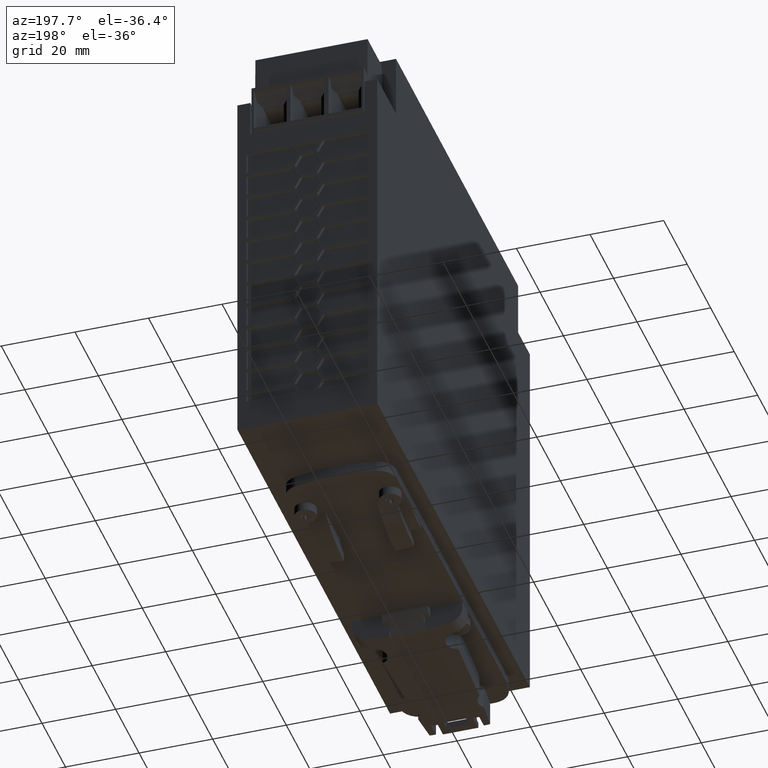
[diagram: clean part render]
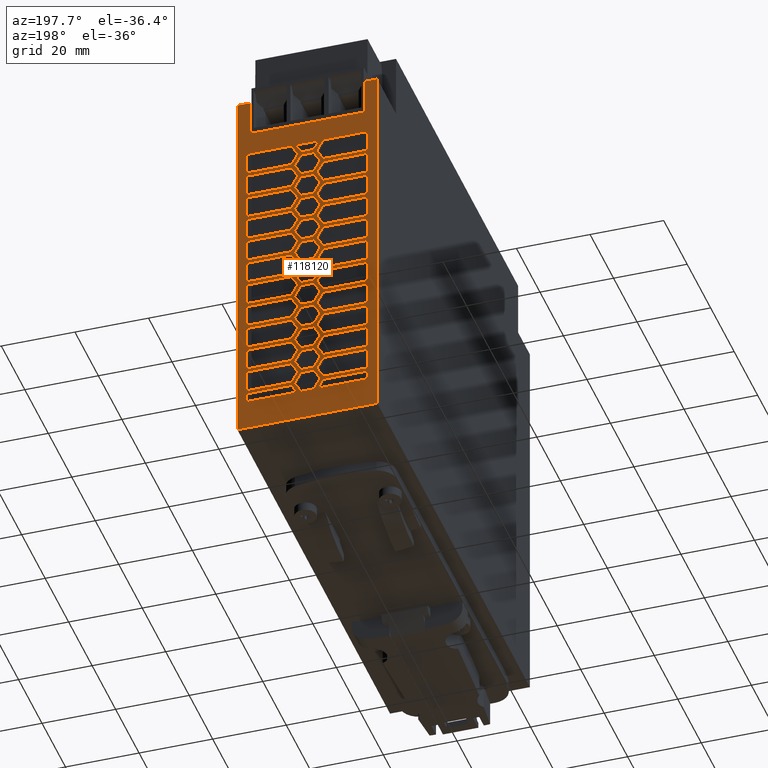
[diagram: same view with one face highlighted and labeled with its STEP entity id]
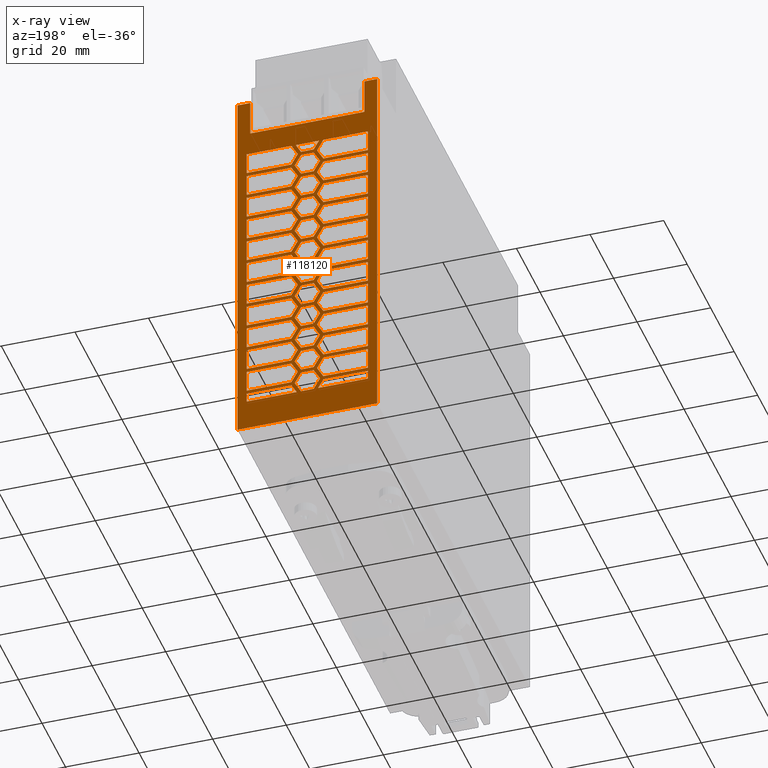
[diagram: x-ray of the same camera — body ghosted, the highlighted face saturated]
A machine part, auxiliary view. The second image highlights one B-rep face of the part: STEP entity #118120.
The next image is the same camera in x-ray: the body ghosted, the highlighted face saturated — about 0% of this face is hidden behind the body in this view.
In plain terms, the highlighted planar face has unit normal (-0, 1, -0).
Its self-contained STEP definition (entity closure, byte-faithful):
#82300=CARTESIAN_POINT('',(17.9983136713304,9.83391146289345E-12,
-0.895453265964761));
#82310=DIRECTION('',(0.999999999905512,2.57338714660564E-20,
-1.37468202355512E-5));
#82320=VECTOR('',#82310,1.);
#82330=LINE('',#82300,#82320);
#82340=CARTESIAN_POINT('',(-1.00168632687437,9.8339109739502E-12,
-0.895192076380284));
#82350=VERTEX_POINT('',#82340);
#82360=CARTESIAN_POINT('',(36.9983136695351,9.833911951837E-12,
-0.895714455549234));
#82370=VERTEX_POINT('',#82360);
#82380=EDGE_CURVE('',#82350,#82370,#82330,.T.);
#84720=CARTESIAN_POINT('',(36.9983136695351,104.300000000009,
-0.895714455549234));
#84730=VERTEX_POINT('',#84720);
#84760=CARTESIAN_POINT('',(36.9983136695351,0.,-0.895714455549234));
#84770=DIRECTION('',(-2.5733871468488E-20,1.,0.));
#84780=VECTOR('',#84770,1.);
#84790=LINE('',#84760,#84780);
#84800=EDGE_CURVE('',#82370,#84730,#84790,.T.);
#101390=CARTESIAN_POINT('',(-1.00168632687437,0.,-0.895192076380284));
#101400=DIRECTION('',(-2.5733871468488E-20,1.,0.));
#101410=VECTOR('',#101400,1.);
#101420=LINE('',#101390,#101410);
#101430=CARTESIAN_POINT('',(-1.00168632687437,104.300000000009,
-0.895192076380283));
#101440=VERTEX_POINT('',#101430);
#101450=EDGE_CURVE('',#82350,#101440,#101420,.T.);
#101880=CARTESIAN_POINT('',(-1.00168632687437,9.83391097394989E-12,
-0.895192076380283));
#101890=DIRECTION('',(-1.37468202355512E-5,-3.53758905042085E-25,
-0.999999999905512));
#101900=DIRECTION('',(0.999999999905512,2.57338714660564E-20,
-1.37468202355512E-5));
#101910=AXIS2_PLACEMENT_3D('',#101880,#101890,#101900);
#101920=PLANE('',#101910);
#101930=ORIENTED_EDGE('',*,*,#84800,.F.);
#101940=CARTESIAN_POINT('',(0.,104.300000000009,-0.895205846382153));
#101950=DIRECTION('',(0.999999999905512,0.,-1.37468202355512E-5));
#101960=VECTOR('',#101950,1.);
#101970=LINE('',#101940,#101960);
#101980=CARTESIAN_POINT('',(33.4983136698658,104.300000000009,
-0.89566634167841));
#101990=VERTEX_POINT('',#101980);
#102000=EDGE_CURVE('',#101990,#84730,#101970,.T.);
#102010=ORIENTED_EDGE('',*,*,#102000,.T.);
#102020=CARTESIAN_POINT('',(33.4983136698658,0.,-0.89566634167841));
#102030=DIRECTION('',(-4.86344526031472E-30,1.,-3.53758905008654E-25));
#102040=VECTOR('',#102030,1.);
#102050=LINE('',#102020,#102040);
#102060=CARTESIAN_POINT('',(33.4983136698658,94.5000000000089,
-0.89566634167841));
#102070=VERTEX_POINT('',#102060);
#102080=EDGE_CURVE('',#102070,#101990,#102050,.T.);
#102090=ORIENTED_EDGE('',*,*,#102080,.T.);
#102100=CARTESIAN_POINT('',(0.,94.5000000000089,-0.895205846382153));
#102110=DIRECTION('',(-0.999999999905512,0.,1.37468202355512E-5));
#102120=VECTOR('',#102110,1.);
#102130=LINE('',#102100,#102120);
#102140=CARTESIAN_POINT('',(2.49831367279492,94.5000000000089,
-0.895240190251108));
#102150=VERTEX_POINT('',#102140);
#102160=EDGE_CURVE('',#102070,#102150,#102130,.T.);
#102170=ORIENTED_EDGE('',*,*,#102160,.F.);
#102180=CARTESIAN_POINT('',(2.49831367279492,0.,-0.895240190251108));
#102190=DIRECTION('',(4.86344526031472E-30,-1.,3.53758905008654E-25));
#102200=VECTOR('',#102190,1.);
#102210=LINE('',#102180,#102200);
#102220=CARTESIAN_POINT('',(2.49831367279492,104.300000000009,
-0.895240190251108));
#102230=VERTEX_POINT('',#102220);
#102240=EDGE_CURVE('',#102230,#102150,#102210,.T.);
#102250=ORIENTED_EDGE('',*,*,#102240,.T.);
#102260=CARTESIAN_POINT('',(0.,104.300000000009,-0.895205846382153));
#102270=DIRECTION('',(0.999999999905512,0.,-1.37468202355512E-5));
#102280=VECTOR('',#102270,1.);
#102290=LINE('',#102260,#102280);
#102300=EDGE_CURVE('',#101440,#102230,#102290,.T.);
#102310=ORIENTED_EDGE('',*,*,#102300,.T.);
#102320=ORIENTED_EDGE('',*,*,#101450,.T.);
#102330=ORIENTED_EDGE('',*,*,#82380,.F.);
#102340=EDGE_LOOP('',(#102330,#102320,#102310,#102250,#102170,#102090,
#102010,#101930));
#102350=FACE_OUTER_BOUND('',#102340,.T.);
#102360=CARTESIAN_POINT('',(0.,68.0000000000089,-0.895205846382153));
#102370=DIRECTION('',(0.999999999905512,0.,-1.37468202355512E-5));
#102380=VECTOR('',#102370,1.);
#102390=LINE('',#102360,#102380);
#102400=CARTESIAN_POINT('',(1.49831367288941,68.0000000000089,
-0.895226443430872));
#102410=VERTEX_POINT('',#102400);
#102420=CARTESIAN_POINT('',(13.6681866528175,68.0000000000089,
-0.895393740487034));
#102430=VERTEX_POINT('',#102420);
#102440=EDGE_CURVE('',#102410,#102430,#102390,.T.);
#102450=ORIENTED_EDGE('',*,*,#102440,.T.);
#102460=CARTESIAN_POINT('',(1.49831367288941,0.,-0.895226443430872));
#102470=DIRECTION('',(4.86344555979027E-30,-1.,3.53758905008654E-25));
#102480=VECTOR('',#102470,1.);
#102490=LINE('',#102460,#102480);
#102500=CARTESIAN_POINT('',(1.49831367288941,74.0000000000089,
-0.895226443430872));
#102510=VERTEX_POINT('',#102500);
#102520=EDGE_CURVE('',#102510,#102410,#102490,.T.);
#102530=ORIENTED_EDGE('',*,*,#102520,.T.);
#102540=CARTESIAN_POINT('',(0.,74.0000000000089,-0.895205846382153));
#102550=DIRECTION('',(-0.999999999905512,0.,1.37468202355512E-5));
#102560=VECTOR('',#102550,1.);
#102570=LINE('',#102540,#102560);
#102580=CARTESIAN_POINT('',(13.6681866528175,74.0000000000089,
-0.895393740487032));
#102590=VERTEX_POINT('',#102580);
#102600=EDGE_CURVE('',#102590,#102510,#102570,.T.);
#102610=ORIENTED_EDGE('',*,*,#102600,.T.);
#102620=CARTESIAN_POINT('',(56.39210656882,0.,-0.895981058533932));
#102630=DIRECTION('',(-0.499999999952773,0.866025403784429,
6.87341011779141E-6));
#102640=VECTOR('',#102630,1.);
#102650=LINE('',#102620,#102640);
#102660=CARTESIAN_POINT('',(15.4002374602228,71.0000000000089,
-0.895417550678124));
#102670=VERTEX_POINT('',#102660);
#102680=EDGE_CURVE('',#102670,#102590,#102650,.T.);
#102690=ORIENTED_EDGE('',*,*,#102680,.T.);
#102700=CARTESIAN_POINT('',(-25.5916316483744,0.,-0.894854042822315));
#102710=DIRECTION('',(0.499999999952773,0.866025403784429,
-6.87341011779141E-6));
#102720=VECTOR('',#102710,1.);
#102730=LINE('',#102700,#102720);
#102740=EDGE_CURVE('',#102430,#102670,#102730,.T.);
#102750=ORIENTED_EDGE('',*,*,#102740,.T.);
#102760=EDGE_LOOP('',(#102750,#102690,#102610,#102530,#102450));
#102770=FACE_BOUND('',#102760,.T.);
#102780=CARTESIAN_POINT('',(0.,22.5000000000089,-0.895205846382153));
#102790=DIRECTION('',(0.999999999905512,0.,-1.37468202355512E-5));
#102800=VECTOR('',#102790,1.);
#102810=LINE('',#102780,#102800);
#102820=CARTESIAN_POINT('',(16.266262863925,22.5000000000089,
-0.895429455773668));
#102830=VERTEX_POINT('',#102820);
#102840=CARTESIAN_POINT('',(19.7303644787357,22.5000000000089,
-0.89547707615585));
#102850=VERTEX_POINT('',#102840);
#102860=EDGE_CURVE('',#102830,#102850,#102810,.T.);
#102870=ORIENTED_EDGE('',*,*,#102860,.T.);
#102880=CARTESIAN_POINT('',(29.2566439194698,0.,-0.895608032206847));
#102890=DIRECTION('',(0.499999999952773,-0.866025403784429,
-6.87341011779141E-6));
#102900=VECTOR('',#102890,1.);
#102910=LINE('',#102880,#102900);
#102920=CARTESIAN_POINT('',(14.5342120565197,25.5000000000089,
-0.895405645582577));
#102930=VERTEX_POINT('',#102920);
#102940=EDGE_CURVE('',#102930,#102830,#102910,.T.);
#102950=ORIENTED_EDGE('',*,*,#102940,.T.);
#102960=CARTESIAN_POINT('',(-0.188219806430403,0.,-0.895203258958309));
#102970=DIRECTION('',(-0.499999999952773,-0.866025403784429,
6.87341011779141E-6));
#102980=VECTOR('',#102970,1.);
#102990=LINE('',#102960,#102980);
#103000=CARTESIAN_POINT('',(16.266262863925,28.5000000000088,
-0.895429455773669));
#103010=VERTEX_POINT('',#103000);
#103020=EDGE_CURVE('',#103010,#102930,#102990,.T.);
#103030=ORIENTED_EDGE('',*,*,#103020,.T.);
#103040=CARTESIAN_POINT('',(0.,28.5000000000088,-0.895205846382153));
#103050=DIRECTION('',(-0.999999999905512,0.,1.37468202355512E-5));
#103060=VECTOR('',#103050,1.);
#103070=LINE('',#103040,#103060);
#103080=CARTESIAN_POINT('',(19.7303644787357,28.5000000000088,
-0.895477076155849));
#103090=VERTEX_POINT('',#103080);
#103100=EDGE_CURVE('',#103090,#103010,#103070,.T.);
#103110=ORIENTED_EDGE('',*,*,#103100,.T.);
#103120=CARTESIAN_POINT('',(36.1848471490912,0.,-0.895703272971209));
#103130=DIRECTION('',(-0.499999999952773,0.866025403784429,
6.87341011779141E-6));
#103140=VECTOR('',#103130,1.);
#103150=LINE('',#103120,#103140);
#103160=CARTESIAN_POINT('',(21.462415286141,25.5000000000088,
-0.89550088634694));
#103170=VERTEX_POINT('',#103160);
#103180=EDGE_CURVE('',#103170,#103090,#103150,.T.);
#103190=ORIENTED_EDGE('',*,*,#103180,.T.);
#103200=CARTESIAN_POINT('',(6.73998342319089,0.,-0.895298499722671));
#103210=DIRECTION('',(0.499999999952773,0.866025403784429,
-6.87341011779141E-6));
#103220=VECTOR('',#103210,1.);
#103230=LINE('',#103200,#103220);
#103240=EDGE_CURVE('',#102850,#103170,#103230,.T.);
#103250=ORIENTED_EDGE('',*,*,#103240,.T.);
#103260=EDGE_LOOP('',(#103250,#103190,#103110,#103030,#102950,#102870));
#103270=FACE_BOUND('',#103260,.T.);
#103280=CARTESIAN_POINT('',(7.89468396146062,0.,-0.895314373183398));
#103290=DIRECTION('',(-0.499999999952773,-0.866025403784429,
6.87341011779141E-6));
#103300=VECTOR('',#103290,1.);
#103310=LINE('',#103280,#103300);
#103320=CARTESIAN_POINT('',(22.3284406898432,25.0000000000089,
-0.895512791442486));
#103330=VERTEX_POINT('',#103320);
#103340=CARTESIAN_POINT('',(20.5963898824379,22.0000000000089,
-0.895488981251394));
#103350=VERTEX_POINT('',#103340);
#103360=EDGE_CURVE('',#103330,#103350,#103310,.T.);
#103370=ORIENTED_EDGE('',*,*,#103360,.T.);
#103380=CARTESIAN_POINT('',(0.,25.0000000000089,-0.895205846382153));
#103390=DIRECTION('',(-0.999999999905512,0.,1.37468202355512E-5));
#103400=VECTOR('',#103390,1.);
#103410=LINE('',#103380,#103400);
#103420=CARTESIAN_POINT('',(34.4983136697714,25.0000000000089,
-0.895680088498645));
#103430=VERTEX_POINT('',#103420);
#103440=EDGE_CURVE('',#103430,#103330,#103410,.T.);
#103450=ORIENTED_EDGE('',*,*,#103440,.T.);
#103460=CARTESIAN_POINT('',(34.4983136697714,0.,-0.895680088498646));
#103470=DIRECTION('',(-4.86344555979027E-30,1.,-3.53758905008654E-25));
#103480=VECTOR('',#103470,1.);
#103490=LINE('',#103460,#103480);
#103500=CARTESIAN_POINT('',(34.4983136697714,19.0000000000088,
-0.895680088498645));
#103510=VERTEX_POINT('',#103500);
#103520=EDGE_CURVE('',#103510,#103430,#103490,.T.);
#103530=ORIENTED_EDGE('',*,*,#103520,.T.);
#103540=CARTESIAN_POINT('',(0.,19.0000000000088,-0.895205846382153));
#103550=DIRECTION('',(0.999999999905512,0.,-1.37468202355512E-5));
#103560=VECTOR('',#103550,1.);
#103570=LINE('',#103540,#103560);
#103580=CARTESIAN_POINT('',(22.3284406898432,19.0000000000088,
-0.895512791442485));
#103590=VERTEX_POINT('',#103580);
#103600=EDGE_CURVE('',#103590,#103510,#103570,.T.);
#103610=ORIENTED_EDGE('',*,*,#103600,.T.);
#103620=CARTESIAN_POINT('',(33.2980958034152,0.,-0.895663589319392));
#103630=DIRECTION('',(0.499999999952773,-0.866025403784429,
-6.87341011779141E-6));
#103640=VECTOR('',#103630,1.);
#103650=LINE('',#103620,#103640);
#103660=EDGE_CURVE('',#103350,#103590,#103650,.T.);
#103670=ORIENTED_EDGE('',*,*,#103660,.T.);
#103680=EDGE_LOOP('',(#103670,#103610,#103530,#103450,#103370));
#103690=FACE_BOUND('',#103680,.T.);
#103700=CARTESIAN_POINT('',(29.2566439194695,0.,-0.895608032206847));
#103710=DIRECTION('',(0.499999999952773,-0.866025403784429,
-6.87341011779141E-6));
#103720=VECTOR('',#103710,1.);
#103730=LINE('',#103700,#103720);
#103740=CARTESIAN_POINT('',(20.5963898824379,15.0000000000089,
-0.895488981251394));
#103750=VERTEX_POINT('',#103740);
#103760=CARTESIAN_POINT('',(22.3284406898432,12.0000000000089,
-0.895512791442485));
#103770=VERTEX_POINT('',#103760);
#103780=EDGE_CURVE('',#103750,#103770,#103730,.T.);
#103790=ORIENTED_EDGE('',*,*,#103780,.T.);
#103800=CARTESIAN_POINT('',(11.9361358454063,0.,-0.895369930295942));
#103810=DIRECTION('',(-0.499999999952773,-0.866025403784429,
6.87341011779141E-6));
#103820=VECTOR('',#103810,1.);
#103830=LINE('',#103800,#103820);
#103840=CARTESIAN_POINT('',(22.3284406898432,18.0000000000089,
-0.895512791442485));
#103850=VERTEX_POINT('',#103840);
#103860=EDGE_CURVE('',#103850,#103750,#103830,.T.);
#103870=ORIENTED_EDGE('',*,*,#103860,.T.);
#103880=CARTESIAN_POINT('',(0.,18.0000000000089,-0.895205846382153));
#103890=DIRECTION('',(-0.999999999905512,0.,1.37468202355512E-5));
#103900=VECTOR('',#103890,1.);
#103910=LINE('',#103880,#103900);
#103920=CARTESIAN_POINT('',(34.4983136697714,18.0000000000089,
-0.895680088498645));
#103930=VERTEX_POINT('',#103920);
#103940=EDGE_CURVE('',#103930,#103850,#103910,.T.);
#103950=ORIENTED_EDGE('',*,*,#103940,.T.);
#103960=CARTESIAN_POINT('',(34.4983136697714,0.,-0.895680088498646));
#103970=DIRECTION('',(-4.86344555979027E-30,1.,-3.53758905008654E-25));
#103980=VECTOR('',#103970,1.);
#103990=LINE('',#103960,#103980);
#104000=CARTESIAN_POINT('',(34.4983136697714,12.0000000000089,
-0.895680088498645));
#104010=VERTEX_POINT('',#104000);
#104020=EDGE_CURVE('',#104010,#103930,#103990,.T.);
#104030=ORIENTED_EDGE('',*,*,#104020,.T.);
#104040=CARTESIAN_POINT('',(0.,12.0000000000089,-0.895205846382153));
#104050=DIRECTION('',(0.999999999905512,0.,-1.37468202355512E-5));
#104060=VECTOR('',#104050,1.);
#104070=LINE('',#104040,#104060);
#104080=EDGE_CURVE('',#103770,#104010,#104070,.T.);
#104090=ORIENTED_EDGE('',*,*,#104080,.T.);
#104100=EDGE_LOOP('',(#104090,#104030,#103950,#103870,#103790));
#104110=FACE_BOUND('',#104100,.T.);
#104120=CARTESIAN_POINT('',(0.,36.5000000000088,-0.895205846382153));
#104130=DIRECTION('',(0.999999999905512,0.,-1.37468202355512E-5));
#104140=VECTOR('',#104130,1.);
#104150=LINE('',#104120,#104140);
#104160=CARTESIAN_POINT('',(16.266262863925,36.5000000000088,
-0.895429455773668));
#104170=VERTEX_POINT('',#104160);
#104180=CARTESIAN_POINT('',(19.7303644787357,36.5000000000088,
-0.89547707615585));
#104190=VERTEX_POINT('',#104180);
#104200=EDGE_CURVE('',#104170,#104190,#104150,.T.);
#104210=ORIENTED_EDGE('',*,*,#104200,.T.);
#104220=CARTESIAN_POINT('',(37.3395476873613,0.,-0.895719146431936));
#104230=DIRECTION('',(0.499999999952773,-0.866025403784429,
-6.87341011779141E-6));
#104240=VECTOR('',#104230,1.);
#104250=LINE('',#104220,#104240);
#104260=CARTESIAN_POINT('',(14.5342120565197,39.5000000000089,
-0.895405645582577));
#104270=VERTEX_POINT('',#104260);
#104280=EDGE_CURVE('',#104270,#104170,#104250,.T.);
#104290=ORIENTED_EDGE('',*,*,#104280,.T.);
#104300=CARTESIAN_POINT('',(-8.27112357432182,0.,-0.89509214473322));
#104310=DIRECTION('',(-0.499999999952773,-0.866025403784429,
6.87341011779141E-6));
#104320=VECTOR('',#104310,1.);
#104330=LINE('',#104300,#104320);
#104340=CARTESIAN_POINT('',(16.266262863925,42.5000000000089,
-0.895429455773669));
#104350=VERTEX_POINT('',#104340);
#104360=EDGE_CURVE('',#104350,#104270,#104330,.T.);
#104370=ORIENTED_EDGE('',*,*,#104360,.T.);
#104380=CARTESIAN_POINT('',(0.,42.5000000000088,-0.895205846382153));
#104390=DIRECTION('',(-0.999999999905512,0.,1.37468202355512E-5));
#104400=VECTOR('',#104390,1.);
#104410=LINE('',#104380,#104400);
#104420=CARTESIAN_POINT('',(19.7303644787357,42.5000000000088,
-0.895477076155849));
#104430=VERTEX_POINT('',#104420);
#104440=EDGE_CURVE('',#104430,#104350,#104410,.T.);
#104450=ORIENTED_EDGE('',*,*,#104440,.T.);
#104460=CARTESIAN_POINT('',(44.2677509169826,0.,-0.895814387196298));
#104470=DIRECTION('',(-0.499999999952773,0.866025403784429,
6.87341011779141E-6));
#104480=VECTOR('',#104470,1.);
#104490=LINE('',#104460,#104480);
#104500=CARTESIAN_POINT('',(21.462415286141,39.5000000000088,
-0.89550088634694));
#104510=VERTEX_POINT('',#104500);
#104520=EDGE_CURVE('',#104510,#104430,#104490,.T.);
#104530=ORIENTED_EDGE('',*,*,#104520,.T.);
#104540=CARTESIAN_POINT('',(-1.34292034470049,0.,-0.895187385497582));
#104550=DIRECTION('',(0.499999999952773,0.866025403784429,
-6.87341011779141E-6));
#104560=VECTOR('',#104550,1.);
#104570=LINE('',#104540,#104560);
#104580=EDGE_CURVE('',#104190,#104510,#104570,.T.);
#104590=ORIENTED_EDGE('',*,*,#104580,.T.);
#104600=EDGE_LOOP('',(#104590,#104530,#104450,#104370,#104290,#104210));
#104610=FACE_BOUND('',#104600,.T.);
#104620=CARTESIAN_POINT('',(1.49831367288941,0.,-0.895226443430872));
#104630=DIRECTION('',(4.86344555979027E-30,-1.,3.53758905008654E-25));
#104640=VECTOR('',#104630,1.);
#104650=LINE('',#104620,#104640);
#104660=CARTESIAN_POINT('',(1.49831367288941,25.0000000000089,
-0.895226443430872));
#104670=VERTEX_POINT('',#104660);
#104680=CARTESIAN_POINT('',(1.49831367288941,19.0000000000088,
-0.895226443430872));
#104690=VERTEX_POINT('',#104680);
#104700=EDGE_CURVE('',#104670,#104690,#104650,.T.);
#104710=ORIENTED_EDGE('',*,*,#104700,.T.);
#104720=CARTESIAN_POINT('',(0.,25.0000000000088,-0.895205846382153));
#104730=DIRECTION('',(-0.999999999905512,0.,1.37468202355512E-5));
#104740=VECTOR('',#104730,1.);
#104750=LINE('',#104720,#104740);
#104760=CARTESIAN_POINT('',(13.6681866528175,25.0000000000088,
-0.895393740487032));
#104770=VERTEX_POINT('',#104760);
#104780=EDGE_CURVE('',#104770,#104670,#104750,.T.);
#104790=ORIENTED_EDGE('',*,*,#104780,.T.);
#104800=CARTESIAN_POINT('',(28.1019433812001,0.,-0.89559215874612));
#104810=DIRECTION('',(-0.499999999952773,0.866025403784429,
6.87341011779141E-6));
#104820=VECTOR('',#104810,1.);
#104830=LINE('',#104800,#104820);
#104840=CARTESIAN_POINT('',(15.4002374602228,22.0000000000088,
-0.895417550678124));
#104850=VERTEX_POINT('',#104840);
#104860=EDGE_CURVE('',#104850,#104770,#104830,.T.);
#104870=ORIENTED_EDGE('',*,*,#104860,.T.);
#104880=CARTESIAN_POINT('',(2.69853153924555,0.,-0.895242942610126));
#104890=DIRECTION('',(0.499999999952773,0.866025403784429,
-6.87341011779141E-6));
#104900=VECTOR('',#104890,1.);
#104910=LINE('',#104880,#104900);
#104920=CARTESIAN_POINT('',(13.6681866528175,19.0000000000088,
-0.895393740487033));
#104930=VERTEX_POINT('',#104920);
#104940=EDGE_CURVE('',#104930,#104850,#104910,.T.);
#104950=ORIENTED_EDGE('',*,*,#104940,.T.);
#104960=CARTESIAN_POINT('',(0.,19.0000000000088,-0.895205846382153));
#104970=DIRECTION('',(0.999999999905512,0.,-1.37468202355512E-5));
#104980=VECTOR('',#104970,1.);
#104990=LINE('',#104960,#104980);
#105000=EDGE_CURVE('',#104690,#104930,#104990,.T.);
#105010=ORIENTED_EDGE('',*,*,#105000,.T.);
#105020=EDGE_LOOP('',(#105010,#104950,#104870,#104790,#104710));
#105030=FACE_BOUND('',#105020,.T.);
#105040=CARTESIAN_POINT('',(7.89468396146097,0.,-0.895314373183398));
#105050=DIRECTION('',(-0.499999999952773,-0.866025403784429,
6.87341011779141E-6));
#105060=VECTOR('',#105050,1.);
#105070=LINE('',#105040,#105060);
#105080=CARTESIAN_POINT('',(16.266262863925,14.5000000000088,
-0.895429455773669));
#105090=VERTEX_POINT('',#105080);
#105100=CARTESIAN_POINT('',(14.5342120565197,11.5000000000089,
-0.895405645582578));
#105110=VERTEX_POINT('',#105100);
#105120=EDGE_CURVE('',#105090,#105110,#105070,.T.);
#105130=ORIENTED_EDGE('',*,*,#105120,.T.);
#105140=CARTESIAN_POINT('',(0.,14.5000000000088,-0.895205846382153));
#105150=DIRECTION('',(-0.999999999905512,0.,1.37468202355512E-5));
#105160=VECTOR('',#105150,1.);
#105170=LINE('',#105140,#105160);
#105180=CARTESIAN_POINT('',(19.7303644787357,14.5000000000088,
-0.895477076155849));
#105190=VERTEX_POINT('',#105180);
#105200=EDGE_CURVE('',#105190,#105090,#105170,.T.);
#105210=ORIENTED_EDGE('',*,*,#105200,.T.);
#105220=CARTESIAN_POINT('',(28.1019433811998,0.,-0.89559215874612));
#105230=DIRECTION('',(-0.499999999952773,0.866025403784429,
6.87341011779141E-6));
#105240=VECTOR('',#105230,1.);
#105250=LINE('',#105220,#105240);
#105260=CARTESIAN_POINT('',(21.462415286141,11.5000000000088,
-0.89550088634694));
#105270=VERTEX_POINT('',#105260);
#105280=EDGE_CURVE('',#105270,#105190,#105250,.T.);
#105290=ORIENTED_EDGE('',*,*,#105280,.T.);
#105300=CARTESIAN_POINT('',(14.8228871910823,0.,-0.89540961394776));
#105310=DIRECTION('',(0.499999999952773,0.866025403784429,
-6.87341011779141E-6));
#105320=VECTOR('',#105310,1.);
#105330=LINE('',#105300,#105320);
#105340=CARTESIAN_POINT('',(19.7303644787357,8.50000000000883,
-0.895477076155849));
#105350=VERTEX_POINT('',#105340);
#105360=EDGE_CURVE('',#105350,#105270,#105330,.T.);
#105370=ORIENTED_EDGE('',*,*,#105360,.T.);
#105380=CARTESIAN_POINT('',(0.,8.50000000000885,-0.895205846382153));
#105390=DIRECTION('',(0.999999999905512,0.,-1.37468202355512E-5));
#105400=VECTOR('',#105390,1.);
#105410=LINE('',#105380,#105400);
#105420=CARTESIAN_POINT('',(16.266262863925,8.50000000000885,
-0.895429455773668));
#105430=VERTEX_POINT('',#105420);
#105440=EDGE_CURVE('',#105430,#105350,#105410,.T.);
#105450=ORIENTED_EDGE('',*,*,#105440,.T.);
#105460=CARTESIAN_POINT('',(21.1737401515785,0.,-0.895496917981758));
#105470=DIRECTION('',(0.499999999952773,-0.866025403784429,
-6.87341011779141E-6));
#105480=VECTOR('',#105470,1.);
#105490=LINE('',#105460,#105480);
#105500=EDGE_CURVE('',#105110,#105430,#105490,.T.);
#105510=ORIENTED_EDGE('',*,*,#105500,.T.);
#105520=EDGE_LOOP('',(#105510,#105450,#105370,#105290,#105210,#105130));
#105530=FACE_BOUND('',#105520,.T.);
#105540=CARTESIAN_POINT('',(57.5468071070894,0.,-0.895996931994658));
#105550=DIRECTION('',(0.499999999952773,-0.866025403784429,
-6.87341011779141E-6));
#105560=VECTOR('',#105550,1.);
#105570=LINE('',#105540,#105560);
#105580=CARTESIAN_POINT('',(20.5963898824379,64.0000000000089,
-0.895488981251393));
#105590=VERTEX_POINT('',#105580);
#105600=CARTESIAN_POINT('',(22.3284406898432,61.0000000000089,
-0.895512791442485));
#105610=VERTEX_POINT('',#105600);
#105620=EDGE_CURVE('',#105590,#105610,#105570,.T.);
#105630=ORIENTED_EDGE('',*,*,#105620,.T.);
#105640=CARTESIAN_POINT('',(-16.3540273422136,0.,-0.894981030508131));
#105650=DIRECTION('',(-0.499999999952773,-0.866025403784429,
6.87341011779141E-6));
#105660=VECTOR('',#105650,1.);
#105670=LINE('',#105640,#105660);
#105680=CARTESIAN_POINT('',(22.3284406898432,67.0000000000089,
-0.895512791442486));
#105690=VERTEX_POINT('',#105680);
#105700=EDGE_CURVE('',#105690,#105590,#105670,.T.);
#105710=ORIENTED_EDGE('',*,*,#105700,.T.);
#105720=CARTESIAN_POINT('',(0.,67.0000000000089,-0.895205846382153));
#105730=DIRECTION('',(-0.999999999905512,0.,1.37468202355512E-5));
#105740=VECTOR('',#105730,1.);
#105750=LINE('',#105720,#105740);
#105760=CARTESIAN_POINT('',(34.4983136697714,67.0000000000089,
-0.895680088498645));
#105770=VERTEX_POINT('',#105760);
#105780=EDGE_CURVE('',#105770,#105690,#105750,.T.);
#105790=ORIENTED_EDGE('',*,*,#105780,.T.);
#105800=CARTESIAN_POINT('',(34.4983136697714,0.,-0.895680088498646));
#105810=DIRECTION('',(-4.86344555979027E-30,1.,-3.53758905008654E-25));
#105820=VECTOR('',#105810,1.);
#105830=LINE('',#105800,#105820);
#105840=CARTESIAN_POINT('',(34.4983136697714,61.0000000000089,
-0.895680088498645));
#105850=VERTEX_POINT('',#105840);
#105860=EDGE_CURVE('',#105850,#105770,#105830,.T.);
#105870=ORIENTED_EDGE('',*,*,#105860,.T.);
#105880=CARTESIAN_POINT('',(0.,61.0000000000089,-0.895205846382153));
#105890=DIRECTION('',(0.999999999905512,0.,-1.37468202355512E-5));
#105900=VECTOR('',#105890,1.);
#105910=LINE('',#105880,#105900);
#105920=EDGE_CURVE('',#105610,#105850,#105910,.T.);
#105930=ORIENTED_EDGE('',*,*,#105920,.T.);
#105940=EDGE_LOOP('',(#105930,#105870,#105790,#105710,#105630));
#105950=FACE_BOUND('',#105940,.T.);
#105960=CARTESIAN_POINT('',(36.1848471490915,0.,-0.895703272971209));
#105970=DIRECTION('',(-0.499999999952773,0.866025403784429,
6.87341011779141E-6));
#105980=VECTOR('',#105970,1.);
#105990=LINE('',#105960,#105980);
#106000=CARTESIAN_POINT('',(15.4002374602228,36.0000000000088,
-0.895417550678124));
#106010=VERTEX_POINT('',#106000);
#106020=CARTESIAN_POINT('',(13.6681866528175,39.0000000000089,
-0.895393740487032));
#106030=VERTEX_POINT('',#106020);
#106040=EDGE_CURVE('',#106010,#106030,#105990,.T.);
#106050=ORIENTED_EDGE('',*,*,#106040,.T.);
#106060=CARTESIAN_POINT('',(-5.38437222864589,0.,-0.895131828385037));
#106070=DIRECTION('',(0.499999999952773,0.866025403784429,
-6.87341011779141E-6));
#106080=VECTOR('',#106070,1.);
#106090=LINE('',#106060,#106080);
#106100=CARTESIAN_POINT('',(13.6681866528175,33.0000000000089,
-0.895393740487033));
#106110=VERTEX_POINT('',#106100);
#106120=EDGE_CURVE('',#106110,#106010,#106090,.T.);
#106130=ORIENTED_EDGE('',*,*,#106120,.T.);
#106140=CARTESIAN_POINT('',(0.,33.0000000000089,-0.895205846382153));
#106150=DIRECTION('',(0.999999999905512,0.,-1.37468202355512E-5));
#106160=VECTOR('',#106150,1.);
#106170=LINE('',#106140,#106160);
#106180=CARTESIAN_POINT('',(1.49831367288941,33.0000000000089,
-0.895226443430872));
#106190=VERTEX_POINT('',#106180);
#106200=EDGE_CURVE('',#106190,#106110,#106170,.T.);
#106210=ORIENTED_EDGE('',*,*,#106200,.T.);
#106220=CARTESIAN_POINT('',(1.49831367288941,0.,-0.895226443430872));
#106230=DIRECTION('',(4.86344555979027E-30,-1.,3.53758905008654E-25));
#106240=VECTOR('',#106230,1.);
#106250=LINE('',#106220,#106240);
#106260=CARTESIAN_POINT('',(1.49831367288941,39.0000000000089,
-0.895226443430872));
#106270=VERTEX_POINT('',#106260);
#106280=EDGE_CURVE('',#106270,#106190,#106250,.T.);
#106290=ORIENTED_EDGE('',*,*,#106280,.T.);
#106300=CARTESIAN_POINT('',(0.,39.0000000000089,-0.895205846382153));
#106310=DIRECTION('',(-0.999999999905512,0.,1.37468202355512E-5));
#106320=VECTOR('',#106310,1.);
#106330=LINE('',#106300,#106320);
#106340=EDGE_CURVE('',#106030,#106270,#106330,.T.);
#106350=ORIENTED_EDGE('',*,*,#106340,.T.);
#106360=EDGE_LOOP('',(#106350,#106290,#106210,#106130,#106050));
#106370=FACE_BOUND('',#106360,.T.);
#106380=CARTESIAN_POINT('',(0.,75.0000000000089,-0.895205846382153));
#106390=DIRECTION('',(0.999999999905512,0.,-1.37468202355512E-5));
#106400=VECTOR('',#106390,1.);
#106410=LINE('',#106380,#106400);
#106420=CARTESIAN_POINT('',(1.49831367288941,75.0000000000089,
-0.895226443430872));
#106430=VERTEX_POINT('',#106420);
#106440=CARTESIAN_POINT('',(13.6681866528175,75.0000000000089,
-0.895393740487034));
#106450=VERTEX_POINT('',#106440);
#106460=EDGE_CURVE('',#106430,#106450,#106410,.T.);
#106470=ORIENTED_EDGE('',*,*,#106460,.T.);
#106480=CARTESIAN_POINT('',(1.49831367288941,0.,-0.895226443430872));
#106490=DIRECTION('',(4.86344555979027E-30,-1.,3.53758905008654E-25));
#106500=VECTOR('',#106490,1.);
#106510=LINE('',#106480,#106500);
#106520=CARTESIAN_POINT('',(1.49831367288941,81.0000000000089,
-0.895226443430872));
#106530=VERTEX_POINT('',#106520);
#106540=EDGE_CURVE('',#106530,#106430,#106510,.T.);
#106550=ORIENTED_EDGE('',*,*,#106540,.T.);
#106560=CARTESIAN_POINT('',(0.,81.0000000000089,-0.895205846382153));
#106570=DIRECTION('',(-0.999999999905512,0.,1.37468202355512E-5));
#106580=VECTOR('',#106570,1.);
#106590=LINE('',#106560,#106580);
#106600=CARTESIAN_POINT('',(13.6681866528175,81.0000000000089,
-0.895393740487032));
#106610=VERTEX_POINT('',#106600);
#106620=EDGE_CURVE('',#106610,#106530,#106590,.T.);
#106630=ORIENTED_EDGE('',*,*,#106620,.T.);
#106640=CARTESIAN_POINT('',(60.4335584527657,0.,-0.896036615646476));
#106650=DIRECTION('',(-0.499999999952773,0.866025403784429,
6.87341011779141E-6));
#106660=VECTOR('',#106650,1.);
#106670=LINE('',#106640,#106660);
#106680=CARTESIAN_POINT('',(15.4002374602228,78.0000000000089,
-0.895417550678125));
#106690=VERTEX_POINT('',#106680);
#106700=EDGE_CURVE('',#106690,#106610,#106670,.T.);
#106710=ORIENTED_EDGE('',*,*,#106700,.T.);
#106720=CARTESIAN_POINT('',(-29.63308353232,0.,-0.89479848570977));
#106730=DIRECTION('',(0.499999999952773,0.866025403784429,
-6.87341011779141E-6));
#106740=VECTOR('',#106730,1.);
#106750=LINE('',#106720,#106740);
#106760=EDGE_CURVE('',#106450,#106690,#106750,.T.);
#106770=ORIENTED_EDGE('',*,*,#106760,.T.);
#106780=EDGE_LOOP('',(#106770,#106710,#106630,#106550,#106470));
#106790=FACE_BOUND('',#106780,.T.);
#106800=CARTESIAN_POINT('',(0.,11.0000000000088,-0.895205846382153));
#106810=DIRECTION('',(-0.999999999905512,0.,1.37468202355512E-5));
#106820=VECTOR('',#106810,1.);
#106830=LINE('',#106800,#106820);
#106840=CARTESIAN_POINT('',(13.6681866528174,11.0000000000088,
-0.895393740487032));
#106850=VERTEX_POINT('',#106840);
#106860=CARTESIAN_POINT('',(1.49831367288941,11.0000000000089,
-0.895226443430872));
#106870=VERTEX_POINT('',#106860);
#106880=EDGE_CURVE('',#106850,#106870,#106830,.T.);
#106890=ORIENTED_EDGE('',*,*,#106880,.T.);
#106900=CARTESIAN_POINT('',(20.0190396133086,0.,-0.895481044521031));
#106910=DIRECTION('',(-0.499999999952773,0.866025403784429,
6.87341011779141E-6));
#106920=VECTOR('',#106910,1.);
#106930=LINE('',#106900,#106920);
#106940=CARTESIAN_POINT('',(15.1115623256551,8.50000000000884,
-0.895413582312941));
#106950=VERTEX_POINT('',#106940);
#106960=EDGE_CURVE('',#106950,#106850,#106930,.T.);
#106970=ORIENTED_EDGE('',*,*,#106960,.T.);
#106980=CARTESIAN_POINT('',(0.,8.50000000000884,-0.895205846382153));
#106990=DIRECTION('',(0.999999999905512,0.,-1.37468202355512E-5));
#107000=VECTOR('',#106990,1.);
#107010=LINE('',#106980,#107000);
#107020=CARTESIAN_POINT('',(1.49831367288941,8.50000000000884,
-0.895226443430872));
#107030=VERTEX_POINT('',#107020);
#107040=EDGE_CURVE('',#107030,#106950,#107010,.T.);
#107050=ORIENTED_EDGE('',*,*,#107040,.T.);
#107060=CARTESIAN_POINT('',(1.49831367288941,0.,-0.895226443430872));
#107070=DIRECTION('',(4.86344555979027E-30,-1.,3.53758905008654E-25));
#107080=VECTOR('',#107070,1.);
#107090=LINE('',#107060,#107080);
#107100=EDGE_CURVE('',#106870,#107030,#107090,.T.);
#107110=ORIENTED_EDGE('',*,*,#107100,.T.);
#107120=EDGE_LOOP('',(#107110,#107050,#106970,#106890));
#107130=FACE_BOUND('',#107120,.T.);
#107140=CARTESIAN_POINT('',(0.,88.0000000000089,-0.895205846382153));
#107150=DIRECTION('',(-0.999999999905512,0.,1.37468202355512E-5));
#107160=VECTOR('',#107150,1.);
#107170=LINE('',#107140,#107160);
#107180=CARTESIAN_POINT('',(34.4983136697714,88.0000000000089,
-0.895680088498646));
#107190=VERTEX_POINT('',#107180);
#107200=CARTESIAN_POINT('',(22.3284406898432,88.0000000000089,
-0.895512791442487));
#107210=VERTEX_POINT('',#107200);
#107220=EDGE_CURVE('',#107190,#107210,#107170,.T.);
#107230=ORIENTED_EDGE('',*,*,#107220,.T.);
#107240=CARTESIAN_POINT('',(34.4983136697714,0.,-0.895680088498646));
#107250=DIRECTION('',(-4.86344555979027E-30,1.,-3.53758905008654E-25));
#107260=VECTOR('',#107250,1.);
#107270=LINE('',#107240,#107260);
#107280=CARTESIAN_POINT('',(34.4983136697714,82.0000000000089,
-0.895680088498646));
#107290=VERTEX_POINT('',#107280);
#107300=EDGE_CURVE('',#107290,#107190,#107270,.T.);
#107310=ORIENTED_EDGE('',*,*,#107300,.T.);
#107320=CARTESIAN_POINT('',(0.,82.0000000000089,-0.895205846382153));
#107330=DIRECTION('',(0.999999999905512,0.,-1.37468202355512E-5));
#107340=VECTOR('',#107330,1.);
#107350=LINE('',#107320,#107340);
#107360=CARTESIAN_POINT('',(22.3284406898432,82.0000000000089,
-0.895512791442485));
#107370=VERTEX_POINT('',#107360);
#107380=EDGE_CURVE('',#107370,#107290,#107350,.T.);
#107390=ORIENTED_EDGE('',*,*,#107380,.T.);
#107400=CARTESIAN_POINT('',(69.6711627589265,0.,-0.896163603332292));
#107410=DIRECTION('',(0.499999999952773,-0.866025403784429,
-6.87341011779141E-6));
#107420=VECTOR('',#107410,1.);
#107430=LINE('',#107400,#107420);
#107440=CARTESIAN_POINT('',(20.5963898824379,85.0000000000089,
-0.895488981251393));
#107450=VERTEX_POINT('',#107440);
#107460=EDGE_CURVE('',#107450,#107370,#107430,.T.);
#107470=ORIENTED_EDGE('',*,*,#107460,.T.);
#107480=CARTESIAN_POINT('',(-28.4783829940507,0.,-0.894814359170497));
#107490=DIRECTION('',(-0.499999999952773,-0.866025403784429,
6.87341011779141E-6));
#107500=VECTOR('',#107490,1.);
#107510=LINE('',#107480,#107500);
#107520=EDGE_CURVE('',#107210,#107450,#107510,.T.);
#107530=ORIENTED_EDGE('',*,*,#107520,.T.);
#107540=EDGE_LOOP('',(#107530,#107470,#107390,#107310,#107230));
#107550=FACE_BOUND('',#107540,.T.);
#107560=CARTESIAN_POINT('',(0.,39.0000000000089,-0.895205846382153));
#107570=DIRECTION('',(-0.999999999905512,0.,1.37468202355512E-5));
#107580=VECTOR('',#107570,1.);
#107590=LINE('',#107560,#107580);
#107600=CARTESIAN_POINT('',(34.4983136697714,39.0000000000089,
-0.895680088498645));
#107610=VERTEX_POINT('',#107600);
#107620=CARTESIAN_POINT('',(22.3284406898432,39.0000000000089,
-0.895512791442486));
#107630=VERTEX_POINT('',#107620);
#107640=EDGE_CURVE('',#107610,#107630,#107590,.T.);
#107650=ORIENTED_EDGE('',*,*,#107640,.T.);
#107660=CARTESIAN_POINT('',(34.4983136697714,0.,-0.895680088498646));
#107670=DIRECTION('',(-4.86344555979027E-30,1.,-3.53758905008654E-25));
#107680=VECTOR('',#107670,1.);
#107690=LINE('',#107660,#107680);
#107700=CARTESIAN_POINT('',(34.4983136697714,33.0000000000089,
-0.895680088498645));
#107710=VERTEX_POINT('',#107700);
#107720=EDGE_CURVE('',#107710,#107610,#107690,.T.);
#107730=ORIENTED_EDGE('',*,*,#107720,.T.);
#107740=CARTESIAN_POINT('',(0.,33.0000000000089,-0.895205846382153));
#107750=DIRECTION('',(0.999999999905512,0.,-1.37468202355512E-5));
#107760=VECTOR('',#107750,1.);
#107770=LINE('',#107740,#107760);
#107780=CARTESIAN_POINT('',(22.3284406898432,33.0000000000089,
-0.895512791442485));
#107790=VERTEX_POINT('',#107780);
#107800=EDGE_CURVE('',#107790,#107710,#107770,.T.);
#107810=ORIENTED_EDGE('',*,*,#107800,.T.);
#107820=CARTESIAN_POINT('',(41.3809995713066,0.,-0.895774703544481));
#107830=DIRECTION('',(0.499999999952773,-0.866025403784429,
-6.87341011779141E-6));
#107840=VECTOR('',#107830,1.);
#107850=LINE('',#107820,#107840);
#107860=CARTESIAN_POINT('',(20.5963898824379,36.0000000000089,
-0.895488981251394));
#107870=VERTEX_POINT('',#107860);
#107880=EDGE_CURVE('',#107870,#107790,#107850,.T.);
#107890=ORIENTED_EDGE('',*,*,#107880,.T.);
#107900=CARTESIAN_POINT('',(-0.1882198064308,0.,-0.895203258958309));
#107910=DIRECTION('',(-0.499999999952773,-0.866025403784429,
6.87341011779141E-6));
#107920=VECTOR('',#107910,1.);
#107930=LINE('',#107900,#107920);
#107940=EDGE_CURVE('',#107630,#107870,#107930,.T.);
#107950=ORIENTED_EDGE('',*,*,#107940,.T.);
#107960=EDGE_LOOP('',(#107950,#107890,#107810,#107730,#107650));
#107970=FACE_BOUND('',#107960,.T.);
#107980=CARTESIAN_POINT('',(15.977587729352,0.,-0.895425487408486));
#107990=DIRECTION('',(-0.499999999952773,-0.866025403784429,
6.87341011779141E-6));
#108000=VECTOR('',#107990,1.);
#108010=LINE('',#107980,#108000);
#108020=CARTESIAN_POINT('',(22.3284406898432,11.0000000000088,
-0.895512791442485));
#108030=VERTEX_POINT('',#108020);
#108040=CARTESIAN_POINT('',(20.8850650170055,8.50000000000885,
-0.895492949616576));
#108050=VERTEX_POINT('',#108040);
#108060=EDGE_CURVE('',#108030,#108050,#108010,.T.);
#108070=ORIENTED_EDGE('',*,*,#108060,.T.);
#108080=CARTESIAN_POINT('',(0.,11.0000000000089,-0.895205846382153));
#108090=DIRECTION('',(-0.999999999905512,0.,1.37468202355512E-5));
#108100=VECTOR('',#108090,1.);
#108110=LINE('',#108080,#108100);
#108120=CARTESIAN_POINT('',(34.4983136697714,11.0000000000089,
-0.895680088498645));
#108130=VERTEX_POINT('',#108120);
#108140=EDGE_CURVE('',#108130,#108030,#108110,.T.);
#108150=ORIENTED_EDGE('',*,*,#108140,.T.);
#108160=CARTESIAN_POINT('',(34.4983136697714,0.,-0.895680088498646));
#108170=DIRECTION('',(-4.86344555979027E-30,1.,-3.53758905008654E-25));
#108180=VECTOR('',#108170,1.);
#108190=LINE('',#108160,#108180);
#108200=CARTESIAN_POINT('',(34.4983136697714,8.50000000000885,
-0.895680088498645));
#108210=VERTEX_POINT('',#108200);
#108220=EDGE_CURVE('',#108210,#108130,#108190,.T.);
#108230=ORIENTED_EDGE('',*,*,#108220,.T.);
#108240=CARTESIAN_POINT('',(0.,8.50000000000885,-0.895205846382153));
#108250=DIRECTION('',(0.999999999905512,0.,-1.37468202355512E-5));
#108260=VECTOR('',#108250,1.);
#108270=LINE('',#108240,#108260);
#108280=EDGE_CURVE('',#108050,#108210,#108270,.T.);
#108290=ORIENTED_EDGE('',*,*,#108280,.T.);
#108300=EDGE_LOOP('',(#108290,#108230,#108150,#108070));
#108310=FACE_BOUND('',#108300,.T.);
#108320=CARTESIAN_POINT('',(64.4750103367111,0.,-0.89609217275902));
#108330=DIRECTION('',(-0.499999999952773,0.866025403784429,
6.87341011779141E-6));
#108340=VECTOR('',#108330,1.);
#108350=LINE('',#108320,#108340);
#108360=CARTESIAN_POINT('',(21.462415286141,74.5000000000089,
-0.895500886346941));
#108370=VERTEX_POINT('',#108360);
#108380=CARTESIAN_POINT('',(19.7303644787357,77.5000000000089,
-0.895477076155849));
#108390=VERTEX_POINT('',#108380);
#108400=EDGE_CURVE('',#108370,#108390,#108350,.T.);
#108410=ORIENTED_EDGE('',*,*,#108400,.T.);
#108420=CARTESIAN_POINT('',(-21.550179764429,0.,-0.894909599934859));
#108430=DIRECTION('',(0.499999999952773,0.866025403784429,
-6.87341011779141E-6));
#108440=VECTOR('',#108430,1.);
#108450=LINE('',#108420,#108440);
#108460=CARTESIAN_POINT('',(19.7303644787357,71.5000000000089,
-0.895477076155851));
#108470=VERTEX_POINT('',#108460);
#108480=EDGE_CURVE('',#108470,#108370,#108450,.T.);
#108490=ORIENTED_EDGE('',*,*,#108480,.T.);
#108500=CARTESIAN_POINT('',(0.,71.5000000000089,-0.895205846382153));
#108510=DIRECTION('',(0.999999999905512,0.,-1.37468202355512E-5));
#108520=VECTOR('',#108510,1.);
#108530=LINE('',#108500,#108520);
#108540=CARTESIAN_POINT('',(16.2662628639251,71.5000000000089,
-0.895429455773668));
#108550=VERTEX_POINT('',#108540);
#108560=EDGE_CURVE('',#108550,#108470,#108530,.T.);
#108570=ORIENTED_EDGE('',*,*,#108560,.T.);
#108580=CARTESIAN_POINT('',(57.5468071070898,0.,-0.895996931994658));
#108590=DIRECTION('',(0.499999999952773,-0.866025403784429,
-6.87341011779141E-6));
#108600=VECTOR('',#108590,1.);
#108610=LINE('',#108580,#108600);
#108620=CARTESIAN_POINT('',(14.5342120565197,74.5000000000089,
-0.895405645582576));
#108630=VERTEX_POINT('',#108620);
#108640=EDGE_CURVE('',#108630,#108550,#108610,.T.);
#108650=ORIENTED_EDGE('',*,*,#108640,.T.);
#108660=CARTESIAN_POINT('',(-28.4783829940503,0.,-0.894814359170497));
#108670=DIRECTION('',(-0.499999999952773,-0.866025403784429,
6.87341011779141E-6));
#108680=VECTOR('',#108670,1.);
#108690=LINE('',#108660,#108680);
#108700=CARTESIAN_POINT('',(16.266262863925,77.5000000000089,
-0.89542945577367));
#108710=VERTEX_POINT('',#108700);
#108720=EDGE_CURVE('',#108710,#108630,#108690,.T.);
#108730=ORIENTED_EDGE('',*,*,#108720,.T.);
#108740=CARTESIAN_POINT('',(0.,77.5000000000089,-0.895205846382153));
#108750=DIRECTION('',(-0.999999999905512,0.,1.37468202355512E-5));
#108760=VECTOR('',#108750,1.);
#108770=LINE('',#108740,#108760);
#108780=EDGE_CURVE('',#108390,#108710,#108770,.T.);
#108790=ORIENTED_EDGE('',*,*,#108780,.T.);
#108800=EDGE_LOOP('',(#108790,#108730,#108650,#108570,#108490,#108410));
#108810=FACE_BOUND('',#108800,.T.);
#108820=CARTESIAN_POINT('',(34.4983136697714,0.,-0.895680088498646));
#108830=DIRECTION('',(-4.86344555979027E-30,1.,-3.53758905008654E-25));
#108840=VECTOR('',#108830,1.);
#108850=LINE('',#108820,#108840);
#108860=CARTESIAN_POINT('',(34.4983136697714,40.0000000000089,
-0.895680088498645));
#108870=VERTEX_POINT('',#108860);
#108880=CARTESIAN_POINT('',(34.4983136697714,46.0000000000089,
-0.895680088498645));
#108890=VERTEX_POINT('',#108880);
#108900=EDGE_CURVE('',#108870,#108890,#108850,.T.);
#108910=ORIENTED_EDGE('',*,*,#108900,.T.);
#108920=CARTESIAN_POINT('',(0.,40.0000000000089,-0.895205846382153));
#108930=DIRECTION('',(0.999999999905512,0.,-1.37468202355512E-5));
#108940=VECTOR('',#108930,1.);
#108950=LINE('',#108920,#108940);
#108960=CARTESIAN_POINT('',(22.3284406898432,40.0000000000089,
-0.895512791442485));
#108970=VERTEX_POINT('',#108960);
#108980=EDGE_CURVE('',#108970,#108870,#108950,.T.);
#108990=ORIENTED_EDGE('',*,*,#108980,.T.);
#109000=CARTESIAN_POINT('',(45.4224514552523,0.,-0.895830260657025));
#109010=DIRECTION('',(0.499999999952773,-0.866025403784429,
-6.87341011779141E-6));
#109020=VECTOR('',#109010,1.);
#109030=LINE('',#109000,#109020);
#109040=CARTESIAN_POINT('',(20.5963898824379,43.0000000000089,
-0.895488981251394));
#109050=VERTEX_POINT('',#109040);
#109060=EDGE_CURVE('',#109050,#108970,#109030,.T.);
#109070=ORIENTED_EDGE('',*,*,#109060,.T.);
#109080=CARTESIAN_POINT('',(-4.2296716903765,0.,-0.895147701845764));
#109090=DIRECTION('',(-0.499999999952773,-0.866025403784429,
6.87341011779141E-6));
#109100=VECTOR('',#109090,1.);
#109110=LINE('',#109080,#109100);
#109120=CARTESIAN_POINT('',(22.3284406898432,46.0000000000089,
-0.895512791442486));
#109130=VERTEX_POINT('',#109120);
#109140=EDGE_CURVE('',#109130,#109050,#109110,.T.);
#109150=ORIENTED_EDGE('',*,*,#109140,.T.);
#109160=CARTESIAN_POINT('',(0.,46.0000000000089,-0.895205846382153));
#109170=DIRECTION('',(-0.999999999905512,0.,1.37468202355512E-5));
#109180=VECTOR('',#109170,1.);
#109190=LINE('',#109160,#109180);
#109200=EDGE_CURVE('',#108890,#109130,#109190,.T.);
#109210=ORIENTED_EDGE('',*,*,#109200,.T.);
#109220=EDGE_LOOP('',(#109210,#109150,#109070,#108990,#108910));
#109230=FACE_BOUND('',#109220,.T.);
#109240=CARTESIAN_POINT('',(52.3506546848739,0.,-0.895925501421387));
#109250=DIRECTION('',(-0.499999999952773,0.866025403784429,
6.87341011779141E-6));
#109260=VECTOR('',#109250,1.);
#109270=LINE('',#109240,#109260);
#109280=CARTESIAN_POINT('',(21.462415286141,53.5000000000088,
-0.895500886346941));
#109290=VERTEX_POINT('',#109280);
#109300=CARTESIAN_POINT('',(19.7303644787357,56.5000000000088,
-0.895477076155849));
#109310=VERTEX_POINT('',#109300);
#109320=EDGE_CURVE('',#109290,#109310,#109270,.T.);
#109330=ORIENTED_EDGE('',*,*,#109320,.T.);
#109340=CARTESIAN_POINT('',(-9.42582411259188,0.,-0.895076271272493));
#109350=DIRECTION('',(0.499999999952773,0.866025403784429,
-6.87341011779141E-6));
#109360=VECTOR('',#109350,1.);
#109370=LINE('',#109340,#109360);
#109380=CARTESIAN_POINT('',(19.7303644787357,50.5000000000088,
-0.89547707615585));
#109390=VERTEX_POINT('',#109380);
#109400=EDGE_CURVE('',#109390,#109290,#109370,.T.);
#109410=ORIENTED_EDGE('',*,*,#109400,.T.);
#109420=CARTESIAN_POINT('',(0.,50.5000000000089,-0.895205846382153));
#109430=DIRECTION('',(0.999999999905512,0.,-1.37468202355512E-5));
#109440=VECTOR('',#109430,1.);
#109450=LINE('',#109420,#109440);
#109460=CARTESIAN_POINT('',(16.266262863925,50.5000000000089,
-0.895429455773668));
#109470=VERTEX_POINT('',#109460);
#109480=EDGE_CURVE('',#109470,#109390,#109450,.T.);
#109490=ORIENTED_EDGE('',*,*,#109480,.T.);
#109500=CARTESIAN_POINT('',(45.4224514552526,0.,-0.895830260657025));
#109510=DIRECTION('',(0.499999999952773,-0.866025403784429,
-6.87341011779141E-6));
#109520=VECTOR('',#109510,1.);
#109530=LINE('',#109500,#109520);
#109540=CARTESIAN_POINT('',(14.5342120565197,53.5000000000089,
-0.895405645582577));
#109550=VERTEX_POINT('',#109540);
#109560=EDGE_CURVE('',#109550,#109470,#109530,.T.);
#109570=ORIENTED_EDGE('',*,*,#109560,.T.);
#109580=CARTESIAN_POINT('',(-16.3540273422132,0.,-0.894981030508131));
#109590=DIRECTION('',(-0.499999999952773,-0.866025403784429,
6.87341011779141E-6));
#109600=VECTOR('',#109590,1.);
#109610=LINE('',#109580,#109600);
#109620=CARTESIAN_POINT('',(16.266262863925,56.5000000000088,
-0.895429455773669));
#109630=VERTEX_POINT('',#109620);
#109640=EDGE_CURVE('',#109630,#109550,#109610,.T.);
#109650=ORIENTED_EDGE('',*,*,#109640,.T.);
#109660=CARTESIAN_POINT('',(0.,56.5000000000088,-0.895205846382153));
#109670=DIRECTION('',(-0.999999999905512,0.,1.37468202355512E-5));
#109680=VECTOR('',#109670,1.);
#109690=LINE('',#109660,#109680);
#109700=EDGE_CURVE('',#109310,#109630,#109690,.T.);
#109710=ORIENTED_EDGE('',*,*,#109700,.T.);
#109720=EDGE_LOOP('',(#109710,#109650,#109570,#109490,#109410,#109330));
#109730=FACE_BOUND('',#109720,.T.);
#109740=CARTESIAN_POINT('',(34.4983136697714,0.,-0.895680088498646));
#109750=DIRECTION('',(-4.86344555979027E-30,1.,-3.53758905008654E-25));
#109760=VECTOR('',#109750,1.);
#109770=LINE('',#109740,#109760);
#109780=CARTESIAN_POINT('',(34.4983136697714,54.0000000000089,
-0.895680088498645));
#109790=VERTEX_POINT('',#109780);
#109800=CARTESIAN_POINT('',(34.4983136697714,60.0000000000089,
-0.895680088498645));
#109810=VERTEX_POINT('',#109800);
#109820=EDGE_CURVE('',#109790,#109810,#109770,.T.);
#109830=ORIENTED_EDGE('',*,*,#109820,.T.);
#109840=CARTESIAN_POINT('',(0.,54.0000000000089,-0.895205846382153));
#109850=DIRECTION('',(0.999999999905512,0.,-1.37468202355512E-5));
#109860=VECTOR('',#109850,1.);
#109870=LINE('',#109840,#109860);
#109880=CARTESIAN_POINT('',(22.3284406898432,54.0000000000089,
-0.895512791442485));
#109890=VERTEX_POINT('',#109880);
#109900=EDGE_CURVE('',#109890,#109790,#109870,.T.);
#109910=ORIENTED_EDGE('',*,*,#109900,.T.);
#109920=CARTESIAN_POINT('',(53.5053552231437,0.,-0.895941374882114));
#109930=DIRECTION('',(0.499999999952773,-0.866025403784429,
-6.87341011779141E-6));
#109940=VECTOR('',#109930,1.);
#109950=LINE('',#109920,#109940);
#109960=CARTESIAN_POINT('',(20.5963898824379,57.0000000000089,
-0.895488981251394));
#109970=VERTEX_POINT('',#109960);
#109980=EDGE_CURVE('',#109970,#109890,#109950,.T.);
#109990=ORIENTED_EDGE('',*,*,#109980,.T.);
#110000=CARTESIAN_POINT('',(-12.3125754582679,0.,-0.895036587620675));
#110010=DIRECTION('',(-0.499999999952773,-0.866025403784429,
6.87341011779141E-6));
#110020=VECTOR('',#110010,1.);
#110030=LINE('',#110000,#110020);
#110040=CARTESIAN_POINT('',(22.3284406898432,60.0000000000089,
-0.895512791442486));
#110050=VERTEX_POINT('',#110040);
#110060=EDGE_CURVE('',#110050,#109970,#110030,.T.);
#110070=ORIENTED_EDGE('',*,*,#110060,.T.);
#110080=CARTESIAN_POINT('',(0.,60.0000000000089,-0.895205846382153));
#110090=DIRECTION('',(-0.999999999905512,0.,1.37468202355512E-5));
#110100=VECTOR('',#110090,1.);
#110110=LINE('',#110080,#110100);
#110120=EDGE_CURVE('',#109810,#110050,#110110,.T.);
#110130=ORIENTED_EDGE('',*,*,#110120,.T.);
#110140=EDGE_LOOP('',(#110130,#110070,#109990,#109910,#109830));
#110150=FACE_BOUND('',#110140,.T.);
#110160=CARTESIAN_POINT('',(0.,82.0000000000089,-0.895205846382153));
#110170=DIRECTION('',(0.999999999905512,0.,-1.37468202355512E-5));
#110180=VECTOR('',#110170,1.);
#110190=LINE('',#110160,#110180);
#110200=CARTESIAN_POINT('',(1.49831367288941,82.0000000000089,
-0.895226443430872));
#110210=VERTEX_POINT('',#110200);
#110220=CARTESIAN_POINT('',(13.6681866528175,82.0000000000089,
-0.895393740487034));
#110230=VERTEX_POINT('',#110220);
#110240=EDGE_CURVE('',#110210,#110230,#110190,.T.);
#110250=ORIENTED_EDGE('',*,*,#110240,.T.);
#110260=CARTESIAN_POINT('',(1.49831367288941,0.,-0.895226443430872));
#110270=DIRECTION('',(4.86344555979027E-30,-1.,3.53758905008654E-25));
#110280=VECTOR('',#110270,1.);
#110290=LINE('',#110260,#110280);
#110300=CARTESIAN_POINT('',(1.49831367288941,88.0000000000089,
-0.895226443430872));
#110310=VERTEX_POINT('',#110300);
#110320=EDGE_CURVE('',#110310,#110210,#110290,.T.);
#110330=ORIENTED_EDGE('',*,*,#110320,.T.);
#110340=CARTESIAN_POINT('',(0.,88.0000000000089,-0.895205846382153));
#110350=DIRECTION('',(-0.999999999905512,0.,1.37468202355512E-5));
#110360=VECTOR('',#110350,1.);
#110370=LINE('',#110340,#110360);
#110380=CARTESIAN_POINT('',(13.6681866528175,88.0000000000089,
-0.895393740487032));
#110390=VERTEX_POINT('',#110380);
#110400=EDGE_CURVE('',#110390,#110310,#110370,.T.);
#110410=ORIENTED_EDGE('',*,*,#110400,.T.);
#110420=CARTESIAN_POINT('',(64.4750103367114,0.,-0.89609217275902));
#110430=DIRECTION('',(-0.499999999952773,0.866025403784429,
6.87341011779141E-6));
#110440=VECTOR('',#110430,1.);
#110450=LINE('',#110420,#110440);
#110460=CARTESIAN_POINT('',(15.4002374602229,85.0000000000089,
-0.895417550678125));
#110470=VERTEX_POINT('',#110460);
#110480=EDGE_CURVE('',#110470,#110390,#110450,.T.);
#110490=ORIENTED_EDGE('',*,*,#110480,.T.);
#110500=CARTESIAN_POINT('',(-33.6745354162657,0.,-0.894742928597226));
#110510=DIRECTION('',(0.499999999952773,0.866025403784429,
-6.87341011779141E-6));
#110520=VECTOR('',#110510,1.);
#110530=LINE('',#110500,#110520);
#110540=EDGE_CURVE('',#110230,#110470,#110530,.T.);
#110550=ORIENTED_EDGE('',*,*,#110540,.T.);
#110560=EDGE_LOOP('',(#110550,#110490,#110410,#110330,#110250));
#110570=FACE_BOUND('',#110560,.T.);
#110580=CARTESIAN_POINT('',(56.3921065688196,0.,-0.895981058533932));
#110590=DIRECTION('',(-0.499999999952773,0.866025403784429,
6.87341011779141E-6));
#110600=VECTOR('',#110590,1.);
#110610=LINE('',#110580,#110600);
#110620=CARTESIAN_POINT('',(21.462415286141,60.5000000000088,
-0.895500886346941));
#110630=VERTEX_POINT('',#110620);
#110640=CARTESIAN_POINT('',(19.7303644787357,63.5000000000089,
-0.895477076155849));
#110650=VERTEX_POINT('',#110640);
#110660=EDGE_CURVE('',#110630,#110650,#110610,.T.);
#110670=ORIENTED_EDGE('',*,*,#110660,.T.);
#110680=CARTESIAN_POINT('',(-13.4672759965376,0.,-0.895020714159948));
#110690=DIRECTION('',(0.499999999952773,0.866025403784429,
-6.87341011779141E-6));
#110700=VECTOR('',#110690,1.);
#110710=LINE('',#110680,#110700);
#110720=CARTESIAN_POINT('',(19.7303644787357,57.5000000000088,
-0.89547707615585));
#110730=VERTEX_POINT('',#110720);
#110740=EDGE_CURVE('',#110730,#110630,#110710,.T.);
#110750=ORIENTED_EDGE('',*,*,#110740,.T.);
#110760=CARTESIAN_POINT('',(0.,57.5000000000088,-0.895205846382153));
#110770=DIRECTION('',(0.999999999905512,0.,-1.37468202355512E-5));
#110780=VECTOR('',#110770,1.);
#110790=LINE('',#110760,#110780);
#110800=CARTESIAN_POINT('',(16.266262863925,57.5000000000088,
-0.895429455773668));
#110810=VERTEX_POINT('',#110800);
#110820=EDGE_CURVE('',#110810,#110730,#110790,.T.);
#110830=ORIENTED_EDGE('',*,*,#110820,.T.);
#110840=CARTESIAN_POINT('',(49.4639033391983,0.,-0.89588581776957));
#110850=DIRECTION('',(0.499999999952773,-0.866025403784429,
-6.87341011779141E-6));
#110860=VECTOR('',#110850,1.);
#110870=LINE('',#110840,#110860);
#110880=CARTESIAN_POINT('',(14.5342120565197,60.5000000000088,
-0.895405645582577));
#110890=VERTEX_POINT('',#110880);
#110900=EDGE_CURVE('',#110890,#110810,#110870,.T.);
#110910=ORIENTED_EDGE('',*,*,#110900,.T.);
#110920=CARTESIAN_POINT('',(-20.3954792261589,0.,-0.894925473395586));
#110930=DIRECTION('',(-0.499999999952773,-0.866025403784429,
6.87341011779141E-6));
#110940=VECTOR('',#110930,1.);
#110950=LINE('',#110920,#110940);
#110960=CARTESIAN_POINT('',(16.266262863925,63.5000000000088,
-0.895429455773669));
#110970=VERTEX_POINT('',#110960);
#110980=EDGE_CURVE('',#110970,#110890,#110950,.T.);
#110990=ORIENTED_EDGE('',*,*,#110980,.T.);
#111000=CARTESIAN_POINT('',(0.,63.5000000000089,-0.895205846382153));
#111010=DIRECTION('',(-0.999999999905512,0.,1.37468202355512E-5));
#111020=VECTOR('',#111010,1.);
#111030=LINE('',#111000,#111020);
#111040=EDGE_CURVE('',#110650,#110970,#111030,.T.);
#111050=ORIENTED_EDGE('',*,*,#111040,.T.);
#111060=EDGE_LOOP('',(#111050,#110990,#110910,#110830,#110750,#110670));
#111070=FACE_BOUND('',#111060,.T.);
#111080=CARTESIAN_POINT('',(-4.22967169037616,0.,-0.895147701845764));
#111090=DIRECTION('',(-0.499999999952773,-0.866025403784429,
6.87341011779141E-6));
#111100=VECTOR('',#111090,1.);
#111110=LINE('',#111080,#111100);
#111120=CARTESIAN_POINT('',(16.266262863925,35.5000000000089,
-0.895429455773669));
#111130=VERTEX_POINT('',#111120);
#111140=CARTESIAN_POINT('',(14.5342120565197,32.5000000000088,
-0.895405645582577));
#111150=VERTEX_POINT('',#111140);
#111160=EDGE_CURVE('',#111130,#111150,#111110,.T.);
#111170=ORIENTED_EDGE('',*,*,#111160,.T.);
#111180=CARTESIAN_POINT('',(0.,35.5000000000089,-0.895205846382153));
#111190=DIRECTION('',(-0.999999999905512,0.,1.37468202355512E-5));
#111200=VECTOR('',#111190,1.);
#111210=LINE('',#111180,#111200);
#111220=CARTESIAN_POINT('',(19.7303644787357,35.5000000000089,
-0.895477076155849));
#111230=VERTEX_POINT('',#111220);
#111240=EDGE_CURVE('',#111230,#111130,#111210,.T.);
#111250=ORIENTED_EDGE('',*,*,#111240,.T.);
#111260=CARTESIAN_POINT('',(40.2262990330369,0.,-0.895758830083754));
#111270=DIRECTION('',(-0.499999999952773,0.866025403784429,
6.87341011779141E-6));
#111280=VECTOR('',#111270,1.);
#111290=LINE('',#111260,#111280);
#111300=CARTESIAN_POINT('',(21.462415286141,32.5000000000088,
-0.89550088634694));
#111310=VERTEX_POINT('',#111300);
#111320=EDGE_CURVE('',#111310,#111230,#111290,.T.);
#111330=ORIENTED_EDGE('',*,*,#111320,.T.);
#111340=CARTESIAN_POINT('',(2.69853153924521,0.,-0.895242942610126));
#111350=DIRECTION('',(0.499999999952773,0.866025403784429,
-6.87341011779141E-6));
#111360=VECTOR('',#111350,1.);
#111370=LINE('',#111340,#111360);
#111380=CARTESIAN_POINT('',(19.7303644787357,29.5000000000088,
-0.89547707615585));
#111390=VERTEX_POINT('',#111380);
#111400=EDGE_CURVE('',#111390,#111310,#111370,.T.);
#111410=ORIENTED_EDGE('',*,*,#111400,.T.);
#111420=CARTESIAN_POINT('',(0.,29.5000000000088,-0.895205846382153));
#111430=DIRECTION('',(0.999999999905512,0.,-1.37468202355512E-5));
#111440=VECTOR('',#111430,1.);
#111450=LINE('',#111420,#111440);
#111460=CARTESIAN_POINT('',(16.266262863925,29.5000000000088,
-0.895429455773668));
#111470=VERTEX_POINT('',#111460);
#111480=EDGE_CURVE('',#111470,#111390,#111450,.T.);
#111490=ORIENTED_EDGE('',*,*,#111480,.T.);
#111500=CARTESIAN_POINT('',(33.2980958034155,0.,-0.895663589319392));
#111510=DIRECTION('',(0.499999999952773,-0.866025403784429,
-6.87341011779141E-6));
#111520=VECTOR('',#111510,1.);
#111530=LINE('',#111500,#111520);
#111540=EDGE_CURVE('',#111150,#111470,#111530,.T.);
#111550=ORIENTED_EDGE('',*,*,#111540,.T.);
#111560=EDGE_LOOP('',(#111550,#111490,#111410,#111330,#111250,#111170));
#111570=FACE_BOUND('',#111560,.T.);
#111580=CARTESIAN_POINT('',(0.,53.0000000000089,-0.895205846382153));
#111590=DIRECTION('',(-0.999999999905512,0.,1.37468202355512E-5));
#111600=VECTOR('',#111590,1.);
#111610=LINE('',#111580,#111600);
#111620=CARTESIAN_POINT('',(34.4983136697714,53.0000000000089,
-0.895680088498645));
#111630=VERTEX_POINT('',#111620);
#111640=CARTESIAN_POINT('',(22.3284406898432,53.0000000000089,
-0.895512791442486));
#111650=VERTEX_POINT('',#111640);
#111660=EDGE_CURVE('',#111630,#111650,#111610,.T.);
#111670=ORIENTED_EDGE('',*,*,#111660,.T.);
#111680=CARTESIAN_POINT('',(34.4983136697714,0.,-0.895680088498646));
#111690=DIRECTION('',(-4.86344555979027E-30,1.,-3.53758905008654E-25));
#111700=VECTOR('',#111690,1.);
#111710=LINE('',#111680,#111700);
#111720=CARTESIAN_POINT('',(34.4983136697714,47.0000000000089,
-0.895680088498645));
#111730=VERTEX_POINT('',#111720);
#111740=EDGE_CURVE('',#111730,#111630,#111710,.T.);
#111750=ORIENTED_EDGE('',*,*,#111740,.T.);
#111760=CARTESIAN_POINT('',(0.,47.0000000000089,-0.895205846382153));
#111770=DIRECTION('',(0.999999999905512,0.,-1.37468202355512E-5));
#111780=VECTOR('',#111770,1.);
#111790=LINE('',#111760,#111780);
#111800=CARTESIAN_POINT('',(22.3284406898432,47.0000000000089,
-0.895512791442485));
#111810=VERTEX_POINT('',#111800);
#111820=EDGE_CURVE('',#111810,#111730,#111790,.T.);
#111830=ORIENTED_EDGE('',*,*,#111820,.T.);
#111840=CARTESIAN_POINT('',(49.463903339198,0.,-0.89588581776957));
#111850=DIRECTION('',(0.499999999952773,-0.866025403784429,
-6.87341011779141E-6));
#111860=VECTOR('',#111850,1.);
#111870=LINE('',#111840,#111860);
#111880=CARTESIAN_POINT('',(20.5963898824379,50.0000000000089,
-0.895488981251394));
#111890=VERTEX_POINT('',#111880);
#111900=EDGE_CURVE('',#111890,#111810,#111870,.T.);
#111910=ORIENTED_EDGE('',*,*,#111900,.T.);
#111920=CARTESIAN_POINT('',(-8.27112357432218,0.,-0.89509214473322));
#111930=DIRECTION('',(-0.499999999952773,-0.866025403784429,
6.87341011779141E-6));
#111940=VECTOR('',#111930,1.);
#111950=LINE('',#111920,#111940);
#111960=EDGE_CURVE('',#111650,#111890,#111950,.T.);
#111970=ORIENTED_EDGE('',*,*,#111960,.T.);
#111980=EDGE_LOOP('',(#111970,#111910,#111830,#111750,#111670));
#111990=FACE_BOUND('',#111980,.T.);
#112000=CARTESIAN_POINT('',(25.2151920355242,0.,-0.895552475094303));
#112010=DIRECTION('',(0.499999999952773,-0.866025403784429,
-6.87341011779141E-6));
#112020=VECTOR('',#112010,1.);
#112030=LINE('',#112000,#112020);
#112040=CARTESIAN_POINT('',(14.5342120565197,18.5000000000089,
-0.895405645582578));
#112050=VERTEX_POINT('',#112040);
#112060=CARTESIAN_POINT('',(16.266262863925,15.5000000000088,
-0.895429455773668));
#112070=VERTEX_POINT('',#112060);
#112080=EDGE_CURVE('',#112050,#112070,#112030,.T.);
#112090=ORIENTED_EDGE('',*,*,#112080,.T.);
#112100=CARTESIAN_POINT('',(3.85323207751529,0.,-0.895258816070853));
#112110=DIRECTION('',(-0.499999999952773,-0.866025403784429,
6.87341011779141E-6));
#112120=VECTOR('',#112110,1.);
#112130=LINE('',#112100,#112120);
#112140=CARTESIAN_POINT('',(16.266262863925,21.5000000000089,
-0.895429455773669));
#112150=VERTEX_POINT('',#112140);
#112160=EDGE_CURVE('',#112150,#112050,#112130,.T.);
#112170=ORIENTED_EDGE('',*,*,#112160,.T.);
#112180=CARTESIAN_POINT('',(0.,21.5000000000088,-0.895205846382153));
#112190=DIRECTION('',(-0.999999999905512,0.,1.37468202355512E-5));
#112200=VECTOR('',#112190,1.);
#112210=LINE('',#112180,#112200);
#112220=CARTESIAN_POINT('',(19.7303644787357,21.5000000000088,
-0.895477076155849));
#112230=VERTEX_POINT('',#112220);
#112240=EDGE_CURVE('',#112230,#112150,#112210,.T.);
#112250=ORIENTED_EDGE('',*,*,#112240,.T.);
#112260=CARTESIAN_POINT('',(32.1433952651455,0.,-0.895647715858665));
#112270=DIRECTION('',(-0.499999999952773,0.866025403784429,
6.87341011779141E-6));
#112280=VECTOR('',#112270,1.);
#112290=LINE('',#112260,#112280);
#112300=CARTESIAN_POINT('',(21.462415286141,18.5000000000088,
-0.89550088634694));
#112310=VERTEX_POINT('',#112300);
#112320=EDGE_CURVE('',#112310,#112230,#112290,.T.);
#112330=ORIENTED_EDGE('',*,*,#112320,.T.);
#112340=CARTESIAN_POINT('',(10.7814353071366,0.,-0.895354056835215));
#112350=DIRECTION('',(0.499999999952773,0.866025403784429,
-6.87341011779141E-6));
#112360=VECTOR('',#112350,1.);
#112370=LINE('',#112340,#112360);
#112380=CARTESIAN_POINT('',(19.7303644787357,15.5000000000088,
-0.89547707615585));
#112390=VERTEX_POINT('',#112380);
#112400=EDGE_CURVE('',#112390,#112310,#112370,.T.);
#112410=ORIENTED_EDGE('',*,*,#112400,.T.);
#112420=CARTESIAN_POINT('',(0.,15.5000000000088,-0.895205846382153));
#112430=DIRECTION('',(0.999999999905512,0.,-1.37468202355512E-5));
#112440=VECTOR('',#112430,1.);
#112450=LINE('',#112420,#112440);
#112460=EDGE_CURVE('',#112070,#112390,#112450,.T.);
#112470=ORIENTED_EDGE('',*,*,#112460,.T.);
#112480=EDGE_LOOP('',(#112470,#112410,#112330,#112250,#112170,#112090));
#112490=FACE_BOUND('',#112480,.T.);
#112500=CARTESIAN_POINT('',(0.,40.0000000000088,-0.895205846382153));
#112510=DIRECTION('',(0.999999999905512,0.,-1.37468202355512E-5));
#112520=VECTOR('',#112510,1.);
#112530=LINE('',#112500,#112520);
#112540=CARTESIAN_POINT('',(1.49831367288941,40.0000000000088,
-0.895226443430872));
#112550=VERTEX_POINT('',#112540);
#112560=CARTESIAN_POINT('',(13.6681866528175,40.0000000000088,
-0.895393740487033));
#112570=VERTEX_POINT('',#112560);
#112580=EDGE_CURVE('',#112550,#112570,#112530,.T.);
#112590=ORIENTED_EDGE('',*,*,#112580,.T.);
#112600=CARTESIAN_POINT('',(1.49831367288941,0.,-0.895226443430872));
#112610=DIRECTION('',(4.86344555979027E-30,-1.,3.53758905008654E-25));
#112620=VECTOR('',#112610,1.);
#112630=LINE('',#112600,#112620);
#112640=CARTESIAN_POINT('',(1.49831367288941,46.0000000000089,
-0.895226443430872));
#112650=VERTEX_POINT('',#112640);
#112660=EDGE_CURVE('',#112650,#112550,#112630,.T.);
#112670=ORIENTED_EDGE('',*,*,#112660,.T.);
#112680=CARTESIAN_POINT('',(0.,46.0000000000089,-0.895205846382153));
#112690=DIRECTION('',(-0.999999999905512,0.,1.37468202355512E-5));
#112700=VECTOR('',#112690,1.);
#112710=LINE('',#112680,#112700);
#112720=CARTESIAN_POINT('',(13.6681866528175,46.0000000000089,
-0.895393740487032));
#112730=VERTEX_POINT('',#112720);
#112740=EDGE_CURVE('',#112730,#112650,#112710,.T.);
#112750=ORIENTED_EDGE('',*,*,#112740,.T.);
#112760=CARTESIAN_POINT('',(40.2262990330372,0.,-0.895758830083754));
#112770=DIRECTION('',(-0.499999999952773,0.866025403784429,
6.87341011779141E-6));
#112780=VECTOR('',#112770,1.);
#112790=LINE('',#112760,#112780);
#112800=CARTESIAN_POINT('',(15.4002374602228,43.0000000000088,
-0.895417550678124));
#112810=VERTEX_POINT('',#112800);
#112820=EDGE_CURVE('',#112810,#112730,#112790,.T.);
#112830=ORIENTED_EDGE('',*,*,#112820,.T.);
#112840=CARTESIAN_POINT('',(-9.42582411259153,0.,-0.895076271272493));
#112850=DIRECTION('',(0.499999999952773,0.866025403784429,
-6.87341011779141E-6));
#112860=VECTOR('',#112850,1.);
#112870=LINE('',#112840,#112860);
#112880=EDGE_CURVE('',#112570,#112810,#112870,.T.);
#112890=ORIENTED_EDGE('',*,*,#112880,.T.);
#112900=EDGE_LOOP('',(#112890,#112830,#112750,#112670,#112590));
#112910=FACE_BOUND('',#112900,.T.);
#112920=CARTESIAN_POINT('',(-24.436931110105,0.,-0.894869916283042));
#112930=DIRECTION('',(-0.499999999952773,-0.866025403784429,
6.87341011779141E-6));
#112940=VECTOR('',#112930,1.);
#112950=LINE('',#112920,#112940);
#112960=CARTESIAN_POINT('',(22.3284406898432,81.0000000000089,
-0.895512791442487));
#112970=VERTEX_POINT('',#112960);
#112980=CARTESIAN_POINT('',(20.5963898824379,78.0000000000089,
-0.895488981251393));
#112990=VERTEX_POINT('',#112980);
#113000=EDGE_CURVE('',#112970,#112990,#112950,.T.);
#113010=ORIENTED_EDGE('',*,*,#113000,.T.);
#113020=CARTESIAN_POINT('',(0.,81.0000000000089,-0.895205846382153));
#113030=DIRECTION('',(-0.999999999905512,0.,1.37468202355512E-5));
#113040=VECTOR('',#113030,1.);
#113050=LINE('',#113020,#113040);
#113060=CARTESIAN_POINT('',(34.4983136697714,81.0000000000089,
-0.895680088498645));
#113070=VERTEX_POINT('',#113060);
#113080=EDGE_CURVE('',#113070,#112970,#113050,.T.);
#113090=ORIENTED_EDGE('',*,*,#113080,.T.);
#113100=CARTESIAN_POINT('',(34.4983136697714,0.,-0.895680088498646));
#113110=DIRECTION('',(-4.86344555979027E-30,1.,-3.53758905008654E-25));
#113120=VECTOR('',#113110,1.);
#113130=LINE('',#113100,#113120);
#113140=CARTESIAN_POINT('',(34.4983136697714,75.0000000000089,
-0.895680088498645));
#113150=VERTEX_POINT('',#113140);
#113160=EDGE_CURVE('',#113150,#113070,#113130,.T.);
#113170=ORIENTED_EDGE('',*,*,#113160,.T.);
#113180=CARTESIAN_POINT('',(0.,75.0000000000089,-0.895205846382153));
#113190=DIRECTION('',(0.999999999905512,0.,-1.37468202355512E-5));
#113200=VECTOR('',#113190,1.);
#113210=LINE('',#113180,#113200);
#113220=CARTESIAN_POINT('',(22.3284406898433,75.0000000000089,
-0.895512791442485));
#113230=VERTEX_POINT('',#113220);
#113240=EDGE_CURVE('',#113230,#113150,#113210,.T.);
#113250=ORIENTED_EDGE('',*,*,#113240,.T.);
#113260=CARTESIAN_POINT('',(65.6297108749808,0.,-0.896108046219747));
#113270=DIRECTION('',(0.499999999952773,-0.866025403784429,
-6.87341011779141E-6));
#113280=VECTOR('',#113270,1.);
#113290=LINE('',#113260,#113280);
#113300=EDGE_CURVE('',#112990,#113230,#113290,.T.);
#113310=ORIENTED_EDGE('',*,*,#113300,.T.);
#113320=EDGE_LOOP('',(#113310,#113250,#113170,#113090,#113010));
#113330=FACE_BOUND('',#113320,.T.);
#113340=CARTESIAN_POINT('',(0.,54.0000000000088,-0.895205846382153));
#113350=DIRECTION('',(0.999999999905512,0.,-1.37468202355512E-5));
#113360=VECTOR('',#113350,1.);
#113370=LINE('',#113340,#113360);
#113380=CARTESIAN_POINT('',(1.49831367288941,54.0000000000088,
-0.895226443430872));
#113390=VERTEX_POINT('',#113380);
#113400=CARTESIAN_POINT('',(13.6681866528175,54.0000000000088,
-0.895393740487034));
#113410=VERTEX_POINT('',#113400);
#113420=EDGE_CURVE('',#113390,#113410,#113370,.T.);
#113430=ORIENTED_EDGE('',*,*,#113420,.T.);
#113440=CARTESIAN_POINT('',(1.49831367288941,0.,-0.895226443430872));
#113450=DIRECTION('',(4.86344555979027E-30,-1.,3.53758905008654E-25));
#113460=VECTOR('',#113450,1.);
#113470=LINE('',#113440,#113460);
#113480=CARTESIAN_POINT('',(1.49831367288941,60.0000000000089,
-0.895226443430872));
#113490=VERTEX_POINT('',#113480);
#113500=EDGE_CURVE('',#113490,#113390,#113470,.T.);
#113510=ORIENTED_EDGE('',*,*,#113500,.T.);
#113520=CARTESIAN_POINT('',(0.,60.0000000000089,-0.895205846382153));
#113530=DIRECTION('',(-0.999999999905512,0.,1.37468202355512E-5));
#113540=VECTOR('',#113530,1.);
#113550=LINE('',#113520,#113540);
#113560=CARTESIAN_POINT('',(13.6681866528175,60.0000000000089,
-0.895393740487032));
#113570=VERTEX_POINT('',#113560);
#113580=EDGE_CURVE('',#113570,#113490,#113550,.T.);
#113590=ORIENTED_EDGE('',*,*,#113580,.T.);
#113600=CARTESIAN_POINT('',(48.3092028009286,0.,-0.895869944308842));
#113610=DIRECTION('',(-0.499999999952773,0.866025403784429,
6.87341011779141E-6));
#113620=VECTOR('',#113610,1.);
#113630=LINE('',#113600,#113620);
#113640=CARTESIAN_POINT('',(15.4002374602228,57.0000000000088,
-0.895417550678124));
#113650=VERTEX_POINT('',#113640);
#113660=EDGE_CURVE('',#113650,#113570,#113630,.T.);
#113670=ORIENTED_EDGE('',*,*,#113660,.T.);
#113680=CARTESIAN_POINT('',(-17.5087278804829,0.,-0.894965157047404));
#113690=DIRECTION('',(0.499999999952773,0.866025403784429,
-6.87341011779141E-6));
#113700=VECTOR('',#113690,1.);
#113710=LINE('',#113680,#113700);
#113720=EDGE_CURVE('',#113410,#113650,#113710,.T.);
#113730=ORIENTED_EDGE('',*,*,#113720,.T.);
#113740=EDGE_LOOP('',(#113730,#113670,#113590,#113510,#113430));
#113750=FACE_BOUND('',#113740,.T.);
#113760=CARTESIAN_POINT('',(0.,47.0000000000088,-0.895205846382153));
#113770=DIRECTION('',(0.999999999905512,0.,-1.37468202355512E-5));
#113780=VECTOR('',#113770,1.);
#113790=LINE('',#113760,#113780);
#113800=CARTESIAN_POINT('',(1.49831367288941,47.0000000000088,
-0.895226443430872));
#113810=VERTEX_POINT('',#113800);
#113820=CARTESIAN_POINT('',(13.6681866528175,47.0000000000088,
-0.895393740487033));
#113830=VERTEX_POINT('',#113820);
#113840=EDGE_CURVE('',#113810,#113830,#113790,.T.);
#113850=ORIENTED_EDGE('',*,*,#113840,.T.);
#113860=CARTESIAN_POINT('',(1.49831367288941,0.,-0.895226443430872));
#113870=DIRECTION('',(4.86344555979027E-30,-1.,3.53758905008654E-25));
#113880=VECTOR('',#113870,1.);
#113890=LINE('',#113860,#113880);
#113900=CARTESIAN_POINT('',(1.49831367288941,53.0000000000089,
-0.895226443430872));
#113910=VERTEX_POINT('',#113900);
#113920=EDGE_CURVE('',#113910,#113810,#113890,.T.);
#113930=ORIENTED_EDGE('',*,*,#113920,.T.);
#113940=CARTESIAN_POINT('',(0.,53.0000000000089,-0.895205846382153));
#113950=DIRECTION('',(-0.999999999905512,0.,1.37468202355512E-5));
#113960=VECTOR('',#113950,1.);
#113970=LINE('',#113940,#113960);
#113980=CARTESIAN_POINT('',(13.6681866528175,53.0000000000089,
-0.895393740487032));
#113990=VERTEX_POINT('',#113980);
#114000=EDGE_CURVE('',#113990,#113910,#113970,.T.);
#114010=ORIENTED_EDGE('',*,*,#114000,.T.);
#114020=CARTESIAN_POINT('',(44.2677509169829,0.,-0.895814387196298));
#114030=DIRECTION('',(-0.499999999952773,0.866025403784429,
6.87341011779141E-6));
#114040=VECTOR('',#114030,1.);
#114050=LINE('',#114020,#114040);
#114060=CARTESIAN_POINT('',(15.4002374602228,50.0000000000088,
-0.895417550678124));
#114070=VERTEX_POINT('',#114060);
#114080=EDGE_CURVE('',#114070,#113990,#114050,.T.);
#114090=ORIENTED_EDGE('',*,*,#114080,.T.);
#114100=CARTESIAN_POINT('',(-13.4672759965372,0.,-0.895020714159948));
#114110=DIRECTION('',(0.499999999952773,0.866025403784429,
-6.87341011779141E-6));
#114120=VECTOR('',#114110,1.);
#114130=LINE('',#114100,#114120);
#114140=EDGE_CURVE('',#113830,#114070,#114130,.T.);
#114150=ORIENTED_EDGE('',*,*,#114140,.T.);
#114160=EDGE_LOOP('',(#114150,#114090,#114010,#113930,#113850));
#114170=FACE_BOUND('',#114160,.T.);
#114180=CARTESIAN_POINT('',(-20.3954792261592,0.,-0.894925473395586));
#114190=DIRECTION('',(-0.499999999952773,-0.866025403784429,
6.87341011779141E-6));
#114200=VECTOR('',#114190,1.);
#114210=LINE('',#114180,#114200);
#114220=CARTESIAN_POINT('',(22.3284406898432,74.0000000000089,
-0.895512791442486));
#114230=VERTEX_POINT('',#114220);
#114240=CARTESIAN_POINT('',(20.5963898824379,71.0000000000089,
-0.895488981251393));
#114250=VERTEX_POINT('',#114240);
#114260=EDGE_CURVE('',#114230,#114250,#114210,.T.);
#114270=ORIENTED_EDGE('',*,*,#114260,.T.);
#114280=CARTESIAN_POINT('',(0.,74.0000000000089,-0.895205846382153));
#114290=DIRECTION('',(-0.999999999905512,0.,1.37468202355512E-5));
#114300=VECTOR('',#114290,1.);
#114310=LINE('',#114280,#114300);
#114320=CARTESIAN_POINT('',(34.4983136697714,74.0000000000089,
-0.895680088498645));
#114330=VERTEX_POINT('',#114320);
#114340=EDGE_CURVE('',#114330,#114230,#114310,.T.);
#114350=ORIENTED_EDGE('',*,*,#114340,.T.);
#114360=CARTESIAN_POINT('',(34.4983136697714,0.,-0.895680088498646));
#114370=DIRECTION('',(-4.86344555979027E-30,1.,-3.53758905008654E-25));
#114380=VECTOR('',#114370,1.);
#114390=LINE('',#114360,#114380);
#114400=CARTESIAN_POINT('',(34.4983136697714,68.0000000000088,
-0.895680088498645));
#114410=VERTEX_POINT('',#114400);
#114420=EDGE_CURVE('',#114410,#114330,#114390,.T.);
#114430=ORIENTED_EDGE('',*,*,#114420,.T.);
#114440=CARTESIAN_POINT('',(0.,68.0000000000088,-0.895205846382153));
#114450=DIRECTION('',(0.999999999905512,0.,-1.37468202355512E-5));
#114460=VECTOR('',#114450,1.);
#114470=LINE('',#114440,#114460);
#114480=CARTESIAN_POINT('',(22.3284406898432,68.0000000000088,
-0.895512791442485));
#114490=VERTEX_POINT('',#114480);
#114500=EDGE_CURVE('',#114490,#114410,#114470,.T.);
#114510=ORIENTED_EDGE('',*,*,#114500,.T.);
#114520=CARTESIAN_POINT('',(61.5882589910351,0.,-0.896052489107203));
#114530=DIRECTION('',(0.499999999952773,-0.866025403784429,
-6.87341011779141E-6));
#114540=VECTOR('',#114530,1.);
#114550=LINE('',#114520,#114540);
#114560=EDGE_CURVE('',#114250,#114490,#114550,.T.);
#114570=ORIENTED_EDGE('',*,*,#114560,.T.);
#114580=EDGE_LOOP('',(#114570,#114510,#114430,#114350,#114270));
#114590=FACE_BOUND('',#114580,.T.);
#114600=CARTESIAN_POINT('',(1.49831367288941,0.,-0.895226443430872));
#114610=DIRECTION('',(4.86344555979027E-30,-1.,3.53758905008654E-25));
#114620=VECTOR('',#114610,1.);
#114630=LINE('',#114600,#114620);
#114640=CARTESIAN_POINT('',(1.49831367288941,18.0000000000089,
-0.895226443430872));
#114650=VERTEX_POINT('',#114640);
#114660=CARTESIAN_POINT('',(1.49831367288941,12.0000000000088,
-0.895226443430872));
#114670=VERTEX_POINT('',#114660);
#114680=EDGE_CURVE('',#114650,#114670,#114630,.T.);
#114690=ORIENTED_EDGE('',*,*,#114680,.T.);
#114700=CARTESIAN_POINT('',(0.,18.0000000000089,-0.895205846382153));
#114710=DIRECTION('',(-0.999999999905512,0.,1.37468202355512E-5));
#114720=VECTOR('',#114710,1.);
#114730=LINE('',#114700,#114720);
#114740=CARTESIAN_POINT('',(13.6681866528175,18.0000000000089,
-0.895393740487032));
#114750=VERTEX_POINT('',#114740);
#114760=EDGE_CURVE('',#114750,#114650,#114730,.T.);
#114770=ORIENTED_EDGE('',*,*,#114760,.T.);
#114780=CARTESIAN_POINT('',(24.0604914972544,0.,-0.895536601633576));
#114790=DIRECTION('',(-0.499999999952773,0.866025403784429,
6.87341011779141E-6));
#114800=VECTOR('',#114790,1.);
#114810=LINE('',#114780,#114800);
#114820=CARTESIAN_POINT('',(15.4002374602228,15.0000000000088,
-0.895417550678123));
#114830=VERTEX_POINT('',#114820);
#114840=EDGE_CURVE('',#114830,#114750,#114810,.T.);
#114850=ORIENTED_EDGE('',*,*,#114840,.T.);
#114860=CARTESIAN_POINT('',(6.73998342319125,0.,-0.895298499722671));
#114870=DIRECTION('',(0.499999999952773,0.866025403784429,
-6.87341011779141E-6));
#114880=VECTOR('',#114870,1.);
#114890=LINE('',#114860,#114880);
#114900=CARTESIAN_POINT('',(13.6681866528175,12.0000000000088,
-0.895393740487033));
#114910=VERTEX_POINT('',#114900);
#114920=EDGE_CURVE('',#114910,#114830,#114890,.T.);
#114930=ORIENTED_EDGE('',*,*,#114920,.T.);
#114940=CARTESIAN_POINT('',(0.,12.0000000000088,-0.895205846382153));
#114950=DIRECTION('',(0.999999999905512,0.,-1.37468202355512E-5));
#114960=VECTOR('',#114950,1.);
#114970=LINE('',#114940,#114960);
#114980=EDGE_CURVE('',#114670,#114910,#114970,.T.);
#114990=ORIENTED_EDGE('',*,*,#114980,.T.);
#115000=EDGE_LOOP('',(#114990,#114930,#114850,#114770,#114690));
#115010=FACE_BOUND('',#115000,.T.);
#115020=CARTESIAN_POINT('',(3.85323207751489,0.,-0.895258816070853));
#115030=DIRECTION('',(-0.499999999952773,-0.866025403784429,
6.87341011779141E-6));
#115040=VECTOR('',#115030,1.);
#115050=LINE('',#115020,#115040);
#115060=CARTESIAN_POINT('',(22.3284406898432,32.0000000000089,
-0.895512791442486));
#115070=VERTEX_POINT('',#115060);
#115080=CARTESIAN_POINT('',(20.5963898824379,29.0000000000088,
-0.895488981251394));
#115090=VERTEX_POINT('',#115080);
#115100=EDGE_CURVE('',#115070,#115090,#115050,.T.);
#115110=ORIENTED_EDGE('',*,*,#115100,.T.);
#115120=CARTESIAN_POINT('',(0.,32.0000000000089,-0.895205846382153));
#115130=DIRECTION('',(-0.999999999905512,0.,1.37468202355512E-5));
#115140=VECTOR('',#115130,1.);
#115150=LINE('',#115120,#115140);
#115160=CARTESIAN_POINT('',(34.4983136697714,32.0000000000089,
-0.895680088498645));
#115170=VERTEX_POINT('',#115160);
#115180=EDGE_CURVE('',#115170,#115070,#115150,.T.);
#115190=ORIENTED_EDGE('',*,*,#115180,.T.);
#115200=CARTESIAN_POINT('',(34.4983136697714,0.,-0.895680088498646));
#115210=DIRECTION('',(-4.86344555979027E-30,1.,-3.53758905008654E-25));
#115220=VECTOR('',#115210,1.);
#115230=LINE('',#115200,#115220);
#115240=CARTESIAN_POINT('',(34.4983136697714,26.0000000000088,
-0.895680088498645));
#115250=VERTEX_POINT('',#115240);
#115260=EDGE_CURVE('',#115250,#115170,#115230,.T.);
#115270=ORIENTED_EDGE('',*,*,#115260,.T.);
#115280=CARTESIAN_POINT('',(0.,26.0000000000088,-0.895205846382153));
#115290=DIRECTION('',(0.999999999905512,0.,-1.37468202355512E-5));
#115300=VECTOR('',#115290,1.);
#115310=LINE('',#115280,#115300);
#115320=CARTESIAN_POINT('',(22.3284406898432,26.0000000000088,
-0.895512791442485));
#115330=VERTEX_POINT('',#115320);
#115340=EDGE_CURVE('',#115330,#115250,#115310,.T.);
#115350=ORIENTED_EDGE('',*,*,#115340,.T.);
#115360=CARTESIAN_POINT('',(37.3395476873609,0.,-0.895719146431936));
#115370=DIRECTION('',(0.499999999952773,-0.866025403784429,
-6.87341011779141E-6));
#115380=VECTOR('',#115370,1.);
#115390=LINE('',#115360,#115380);
#115400=EDGE_CURVE('',#115090,#115330,#115390,.T.);
#115410=ORIENTED_EDGE('',*,*,#115400,.T.);
#115420=EDGE_LOOP('',(#115410,#115350,#115270,#115190,#115110));
#115430=FACE_BOUND('',#115420,.T.);
#115440=CARTESIAN_POINT('',(0.,70.5000000000088,-0.895205846382153));
#115450=DIRECTION('',(-0.999999999905512,0.,1.37468202355512E-5));
#115460=VECTOR('',#115450,1.);
#115470=LINE('',#115440,#115460);
#115480=CARTESIAN_POINT('',(19.7303644787357,70.5000000000088,
-0.895477076155849));
#115490=VERTEX_POINT('',#115480);
#115500=CARTESIAN_POINT('',(16.266262863925,70.5000000000088,
-0.89542945577367));
#115510=VERTEX_POINT('',#115500);
#115520=EDGE_CURVE('',#115490,#115510,#115470,.T.);
#115530=ORIENTED_EDGE('',*,*,#115520,.T.);
#115540=CARTESIAN_POINT('',(60.4335584527653,0.,-0.896036615646476));
#115550=DIRECTION('',(-0.499999999952773,0.866025403784429,
6.87341011779141E-6));
#115560=VECTOR('',#115550,1.);
#115570=LINE('',#115540,#115560);
#115580=CARTESIAN_POINT('',(21.462415286141,67.5000000000088,
-0.895500886346941));
#115590=VERTEX_POINT('',#115580);
#115600=EDGE_CURVE('',#115590,#115490,#115570,.T.);
#115610=ORIENTED_EDGE('',*,*,#115600,.T.);
#115620=CARTESIAN_POINT('',(-17.5087278804833,0.,-0.894965157047404));
#115630=DIRECTION('',(0.499999999952773,0.866025403784429,
-6.87341011779141E-6));
#115640=VECTOR('',#115630,1.);
#115650=LINE('',#115620,#115640);
#115660=CARTESIAN_POINT('',(19.7303644787357,64.5000000000088,
-0.89547707615585));
#115670=VERTEX_POINT('',#115660);
#115680=EDGE_CURVE('',#115670,#115590,#115650,.T.);
#115690=ORIENTED_EDGE('',*,*,#115680,.T.);
#115700=CARTESIAN_POINT('',(0.,64.5000000000089,-0.895205846382153));
#115710=DIRECTION('',(0.999999999905512,0.,-1.37468202355512E-5));
#115720=VECTOR('',#115710,1.);
#115730=LINE('',#115700,#115720);
#115740=CARTESIAN_POINT('',(16.266262863925,64.5000000000089,
-0.895429455773668));
#115750=VERTEX_POINT('',#115740);
#115760=EDGE_CURVE('',#115750,#115670,#115730,.T.);
#115770=ORIENTED_EDGE('',*,*,#115760,.T.);
#115780=CARTESIAN_POINT('',(53.505355223144,0.,-0.895941374882114));
#115790=DIRECTION('',(0.499999999952773,-0.866025403784429,
-6.87341011779141E-6));
#115800=VECTOR('',#115790,1.);
#115810=LINE('',#115780,#115800);
#115820=CARTESIAN_POINT('',(14.5342120565197,67.5000000000089,
-0.895405645582577));
#115830=VERTEX_POINT('',#115820);
#115840=EDGE_CURVE('',#115830,#115750,#115810,.T.);
#115850=ORIENTED_EDGE('',*,*,#115840,.T.);
#115860=CARTESIAN_POINT('',(-24.4369311101046,0.,-0.894869916283042));
#115870=DIRECTION('',(-0.499999999952773,-0.866025403784429,
6.87341011779141E-6));
#115880=VECTOR('',#115870,1.);
#115890=LINE('',#115860,#115880);
#115900=EDGE_CURVE('',#115510,#115830,#115890,.T.);
#115910=ORIENTED_EDGE('',*,*,#115900,.T.);
#115920=EDGE_LOOP('',(#115910,#115850,#115770,#115690,#115610,#115530));
#115930=FACE_BOUND('',#115920,.T.);
#115940=CARTESIAN_POINT('',(0.,26.0000000000088,-0.895205846382153));
#115950=DIRECTION('',(0.999999999905512,0.,-1.37468202355512E-5));
#115960=VECTOR('',#115950,1.);
#115970=LINE('',#115940,#115960);
#115980=CARTESIAN_POINT('',(1.49831367288941,26.0000000000088,
-0.895226443430872));
#115990=VERTEX_POINT('',#115980);
#116000=CARTESIAN_POINT('',(13.6681866528175,26.0000000000088,
-0.895393740487033));
#116010=VERTEX_POINT('',#116000);
#116020=EDGE_CURVE('',#115990,#116010,#115970,.T.);
#116030=ORIENTED_EDGE('',*,*,#116020,.T.);
#116040=CARTESIAN_POINT('',(1.49831367288941,0.,-0.895226443430872));
#116050=DIRECTION('',(4.86344555979027E-30,-1.,3.53758905008654E-25));
#116060=VECTOR('',#116050,1.);
#116070=LINE('',#116040,#116060);
#116080=CARTESIAN_POINT('',(1.49831367288941,32.0000000000089,
-0.895226443430872));
#116090=VERTEX_POINT('',#116080);
#116100=EDGE_CURVE('',#116090,#115990,#116070,.T.);
#116110=ORIENTED_EDGE('',*,*,#116100,.T.);
#116120=CARTESIAN_POINT('',(0.,32.0000000000089,-0.895205846382153));
#116130=DIRECTION('',(-0.999999999905512,0.,1.37468202355512E-5));
#116140=VECTOR('',#116130,1.);
#116150=LINE('',#116120,#116140);
#116160=CARTESIAN_POINT('',(13.6681866528175,32.0000000000089,
-0.895393740487032));
#116170=VERTEX_POINT('',#116160);
#116180=EDGE_CURVE('',#116170,#116090,#116150,.T.);
#116190=ORIENTED_EDGE('',*,*,#116180,.T.);
#116200=CARTESIAN_POINT('',(32.1433952651458,0.,-0.895647715858665));
#116210=DIRECTION('',(-0.499999999952773,0.866025403784429,
6.87341011779141E-6));
#116220=VECTOR('',#116210,1.);
#116230=LINE('',#116200,#116220);
#116240=CARTESIAN_POINT('',(15.4002374602228,29.0000000000088,
-0.895417550678124));
#116250=VERTEX_POINT('',#116240);
#116260=EDGE_CURVE('',#116250,#116170,#116230,.T.);
#116270=ORIENTED_EDGE('',*,*,#116260,.T.);
#116280=CARTESIAN_POINT('',(-1.34292034470015,0.,-0.895187385497582));
#116290=DIRECTION('',(0.499999999952773,0.866025403784429,
-6.87341011779141E-6));
#116300=VECTOR('',#116290,1.);
#116310=LINE('',#116280,#116300);
#116320=EDGE_CURVE('',#116010,#116250,#116310,.T.);
#116330=ORIENTED_EDGE('',*,*,#116320,.T.);
#116340=EDGE_LOOP('',(#116330,#116270,#116190,#116110,#116030));
#116350=FACE_BOUND('',#116340,.T.);
#116360=CARTESIAN_POINT('',(1.49831367288941,0.,-0.895226443430872));
#116370=DIRECTION('',(4.86344555979027E-30,-1.,3.53758905008654E-25));
#116380=VECTOR('',#116370,1.);
#116390=LINE('',#116360,#116380);
#116400=CARTESIAN_POINT('',(1.49831367288941,67.0000000000089,
-0.895226443430872));
#116410=VERTEX_POINT('',#116400);
#116420=CARTESIAN_POINT('',(1.49831367288941,61.0000000000088,
-0.895226443430872));
#116430=VERTEX_POINT('',#116420);
#116440=EDGE_CURVE('',#116410,#116430,#116390,.T.);
#116450=ORIENTED_EDGE('',*,*,#116440,.T.);
#116460=CARTESIAN_POINT('',(0.,67.0000000000089,-0.895205846382153));
#116470=DIRECTION('',(-0.999999999905512,0.,1.37468202355512E-5));
#116480=VECTOR('',#116470,1.);
#116490=LINE('',#116460,#116480);
#116500=CARTESIAN_POINT('',(13.6681866528175,67.0000000000089,
-0.895393740487032));
#116510=VERTEX_POINT('',#116500);
#116520=EDGE_CURVE('',#116510,#116410,#116490,.T.);
#116530=ORIENTED_EDGE('',*,*,#116520,.T.);
#116540=CARTESIAN_POINT('',(52.3506546848743,0.,-0.895925501421387));
#116550=DIRECTION('',(-0.499999999952773,0.866025403784429,
6.87341011779141E-6));
#116560=VECTOR('',#116550,1.);
#116570=LINE('',#116540,#116560);
#116580=CARTESIAN_POINT('',(15.4002374602228,64.0000000000089,
-0.895417550678124));
#116590=VERTEX_POINT('',#116580);
#116600=EDGE_CURVE('',#116590,#116510,#116570,.T.);
#116610=ORIENTED_EDGE('',*,*,#116600,.T.);
#116620=CARTESIAN_POINT('',(-21.5501797644286,0.,-0.894909599934859));
#116630=DIRECTION('',(0.499999999952773,0.866025403784429,
-6.87341011779141E-6));
#116640=VECTOR('',#116630,1.);
#116650=LINE('',#116620,#116640);
#116660=CARTESIAN_POINT('',(13.6681866528175,61.0000000000088,
-0.895393740487034));
#116670=VERTEX_POINT('',#116660);
#116680=EDGE_CURVE('',#116670,#116590,#116650,.T.);
#116690=ORIENTED_EDGE('',*,*,#116680,.T.);
#116700=CARTESIAN_POINT('',(0.,61.0000000000088,-0.895205846382153));
#116710=DIRECTION('',(0.999999999905512,0.,-1.37468202355512E-5));
#116720=VECTOR('',#116710,1.);
#116730=LINE('',#116700,#116720);
#116740=EDGE_CURVE('',#116430,#116670,#116730,.T.);
#116750=ORIENTED_EDGE('',*,*,#116740,.T.);
#116760=EDGE_LOOP('',(#116750,#116690,#116610,#116530,#116450));
#116770=FACE_BOUND('',#116760,.T.);
#116780=CARTESIAN_POINT('',(0.,85.5000000000089,-0.895205846382153));
#116790=DIRECTION('',(0.999999999905512,0.,-1.37468202355512E-5));
#116800=VECTOR('',#116790,1.);
#116810=LINE('',#116780,#116800);
#116820=CARTESIAN_POINT('',(16.266262863925,85.5000000000089,
-0.895429455773668));
#116830=VERTEX_POINT('',#116820);
#116840=CARTESIAN_POINT('',(19.7303644787357,85.5000000000089,
-0.895477076155851));
#116850=VERTEX_POINT('',#116840);
#116860=EDGE_CURVE('',#116830,#116850,#116810,.T.);
#116870=ORIENTED_EDGE('',*,*,#116860,.T.);
#116880=CARTESIAN_POINT('',(65.6297108749811,0.,-0.896108046219747));
#116890=DIRECTION('',(0.499999999952773,-0.866025403784429,
-6.87341011779141E-6));
#116900=VECTOR('',#116890,1.);
#116910=LINE('',#116880,#116900);
#116920=CARTESIAN_POINT('',(14.8228871910873,88.0000000000089,
-0.895409613947758));
#116930=VERTEX_POINT('',#116920);
#116940=EDGE_CURVE('',#116930,#116830,#116910,.T.);
#116950=ORIENTED_EDGE('',*,*,#116940,.T.);
#116960=CARTESIAN_POINT('',(0.,88.0000000000089,-0.895205846382153));
#116970=DIRECTION('',(-0.999999999905512,0.,1.37468202355512E-5));
#116980=VECTOR('',#116970,1.);
#116990=LINE('',#116960,#116980);
#117000=CARTESIAN_POINT('',(21.1737401515735,88.0000000000089,
-0.89549691798176));
#117010=VERTEX_POINT('',#117000);
#117020=EDGE_CURVE('',#117010,#116930,#116990,.T.);
#117030=ORIENTED_EDGE('',*,*,#117020,.T.);
#117040=CARTESIAN_POINT('',(-29.6330835323204,0.,-0.89479848570977));
#117050=DIRECTION('',(0.499999999952773,0.866025403784429,
-6.87341011779141E-6));
#117060=VECTOR('',#117050,1.);
#117070=LINE('',#117040,#117060);
#117080=EDGE_CURVE('',#116850,#117010,#117070,.T.);
#117090=ORIENTED_EDGE('',*,*,#117080,.T.);
#117100=EDGE_LOOP('',(#117090,#117030,#116950,#116870));
#117110=FACE_BOUND('',#117100,.T.);
#117120=CARTESIAN_POINT('',(-32.519834877996,0.,-0.894758802057953));
#117130=DIRECTION('',(-0.499999999952773,-0.866025403784429,
6.87341011779141E-6));
#117140=VECTOR('',#117130,1.);
#117150=LINE('',#117120,#117140);
#117160=CARTESIAN_POINT('',(16.266262863925,84.5000000000089,
-0.89542945577367));
#117170=VERTEX_POINT('',#117160);
#117180=CARTESIAN_POINT('',(14.5342120565197,81.5000000000089,
-0.895405645582576));
#117190=VERTEX_POINT('',#117180);
#117200=EDGE_CURVE('',#117170,#117190,#117150,.T.);
#117210=ORIENTED_EDGE('',*,*,#117200,.T.);
#117220=CARTESIAN_POINT('',(0.,84.5000000000089,-0.895205846382153));
#117230=DIRECTION('',(-0.999999999905512,0.,1.37468202355512E-5));
#117240=VECTOR('',#117230,1.);
#117250=LINE('',#117220,#117240);
#117260=CARTESIAN_POINT('',(19.7303644787357,84.5000000000089,
-0.895477076155849));
#117270=VERTEX_POINT('',#117260);
#117280=EDGE_CURVE('',#117270,#117170,#117250,.T.);
#117290=ORIENTED_EDGE('',*,*,#117280,.T.);
#117300=CARTESIAN_POINT('',(68.5164622206568,0.,-0.896147729871565));
#117310=DIRECTION('',(-0.499999999952773,0.866025403784429,
6.87341011779141E-6));
#117320=VECTOR('',#117310,1.);
#117330=LINE('',#117300,#117320);
#117340=CARTESIAN_POINT('',(21.462415286141,81.5000000000089,
-0.895500886346941));
#117350=VERTEX_POINT('',#117340);
#117360=EDGE_CURVE('',#117350,#117270,#117330,.T.);
#117370=ORIENTED_EDGE('',*,*,#117360,.T.);
#117380=CARTESIAN_POINT('',(-25.5916316483747,0.,-0.894854042822315));
#117390=DIRECTION('',(0.499999999952773,0.866025403784429,
-6.87341011779141E-6));
#117400=VECTOR('',#117390,1.);
#117410=LINE('',#117380,#117400);
#117420=CARTESIAN_POINT('',(19.7303644787357,78.5000000000089,
-0.895477076155851));
#117430=VERTEX_POINT('',#117420);
#117440=EDGE_CURVE('',#117430,#117350,#117410,.T.);
#117450=ORIENTED_EDGE('',*,*,#117440,.T.);
#117460=CARTESIAN_POINT('',(0.,78.5000000000089,-0.895205846382153));
#117470=DIRECTION('',(0.999999999905512,0.,-1.37468202355512E-5));
#117480=VECTOR('',#117470,1.);
#117490=LINE('',#117460,#117480);
#117500=CARTESIAN_POINT('',(16.266262863925,78.5000000000089,
-0.895429455773668));
#117510=VERTEX_POINT('',#117500);
#117520=EDGE_CURVE('',#117510,#117430,#117490,.T.);
#117530=ORIENTED_EDGE('',*,*,#117520,.T.);
#117540=CARTESIAN_POINT('',(61.5882589910355,0.,-0.896052489107203));
#117550=DIRECTION('',(0.499999999952773,-0.866025403784429,
-6.87341011779141E-6));
#117560=VECTOR('',#117550,1.);
#117570=LINE('',#117540,#117560);
#117580=EDGE_CURVE('',#117190,#117510,#117570,.T.);
#117590=ORIENTED_EDGE('',*,*,#117580,.T.);
#117600=EDGE_LOOP('',(#117590,#117530,#117450,#117370,#117290,#117210));
#117610=FACE_BOUND('',#117600,.T.);
#117620=CARTESIAN_POINT('',(0.,49.5000000000088,-0.895205846382153));
#117630=DIRECTION('',(-0.999999999905512,0.,1.37468202355512E-5));
#117640=VECTOR('',#117630,1.);
#117650=LINE('',#117620,#117640);
#117660=CARTESIAN_POINT('',(19.7303644787357,49.5000000000088,
-0.895477076155849));
#117670=VERTEX_POINT('',#117660);
#117680=CARTESIAN_POINT('',(16.266262863925,49.5000000000089,
-0.895429455773669));
#117690=VERTEX_POINT('',#117680);
#117700=EDGE_CURVE('',#117670,#117690,#117650,.T.);
#117710=ORIENTED_EDGE('',*,*,#117700,.T.);
#117720=CARTESIAN_POINT('',(48.3092028009282,0.,-0.895869944308842));
#117730=DIRECTION('',(-0.499999999952773,0.866025403784429,
6.87341011779141E-6));
#117740=VECTOR('',#117730,1.);
#117750=LINE('',#117720,#117740);
#117760=CARTESIAN_POINT('',(21.462415286141,46.5000000000088,
-0.895500886346941));
#117770=VERTEX_POINT('',#117760);
#117780=EDGE_CURVE('',#117770,#117670,#117750,.T.);
#117790=ORIENTED_EDGE('',*,*,#117780,.T.);
#117800=CARTESIAN_POINT('',(-5.38437222864618,0.,-0.895131828385037));
#117810=DIRECTION('',(0.499999999952773,0.866025403784429,
-6.87341011779141E-6));
#117820=VECTOR('',#117810,1.);
#117830=LINE('',#117800,#117820);
#117840=CARTESIAN_POINT('',(19.7303644787357,43.5000000000088,
-0.89547707615585));
#117850=VERTEX_POINT('',#117840);
#117860=EDGE_CURVE('',#117850,#117770,#117830,.T.);
#117870=ORIENTED_EDGE('',*,*,#117860,.T.);
#117880=CARTESIAN_POINT('',(0.,43.5000000000088,-0.895205846382153));
#117890=DIRECTION('',(0.999999999905512,0.,-1.37468202355512E-5));
#117900=VECTOR('',#117890,1.);
#117910=LINE('',#117880,#117900);
#117920=CARTESIAN_POINT('',(16.266262863925,43.5000000000088,
-0.895429455773668));
#117930=VERTEX_POINT('',#117920);
#117940=EDGE_CURVE('',#117930,#117850,#117910,.T.);
#117950=ORIENTED_EDGE('',*,*,#117940,.T.);
#117960=CARTESIAN_POINT('',(41.380999571307,0.,-0.895774703544481));
#117970=DIRECTION('',(0.499999999952773,-0.866025403784429,
-6.87341011779141E-6));
#117980=VECTOR('',#117970,1.);
#117990=LINE('',#117960,#117980);
#118000=CARTESIAN_POINT('',(14.5342120565197,46.5000000000089,
-0.895405645582577));
#118010=VERTEX_POINT('',#118000);
#118020=EDGE_CURVE('',#118010,#117930,#117990,.T.);
#118030=ORIENTED_EDGE('',*,*,#118020,.T.);
#118040=CARTESIAN_POINT('',(-12.3125754582675,0.,-0.895036587620675));
#118050=DIRECTION('',(-0.499999999952773,-0.866025403784429,
6.87341011779141E-6));
#118060=VECTOR('',#118050,1.);
#118070=LINE('',#118040,#118060);
#118080=EDGE_CURVE('',#117690,#118010,#118070,.T.);
#118090=ORIENTED_EDGE('',*,*,#118080,.T.);
#118100=EDGE_LOOP('',(#118090,#118030,#117950,#117870,#117790,#117710));
#118110=FACE_BOUND('',#118100,.T.);
#118120=ADVANCED_FACE('',(#102350,#102770,#103270,#103690,#104110,
#104610,#105030,#105530,#105950,#106370,#106790,#107130,#107550,#107970,
#108310,#108810,#109230,#109730,#110150,#110570,#111070,#111570,#111990,
#112490,#112910,#113330,#113750,#114170,#114590,#115010,#115430,#115930,
#116350,#116770,#117110,#117610,#118110),#101920,.T.);